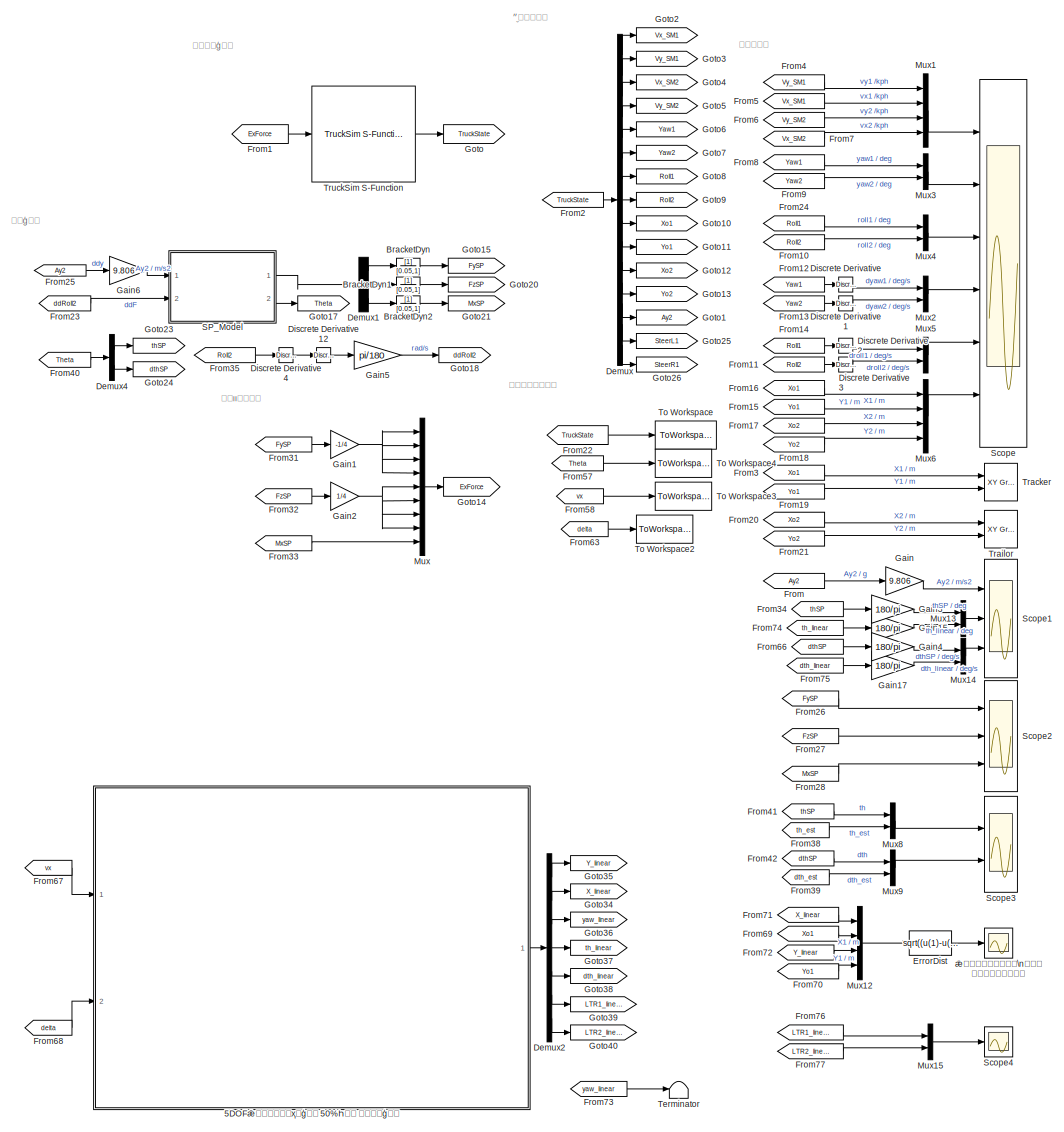
[diagram: root canvas - part 1/2, right side, full height]
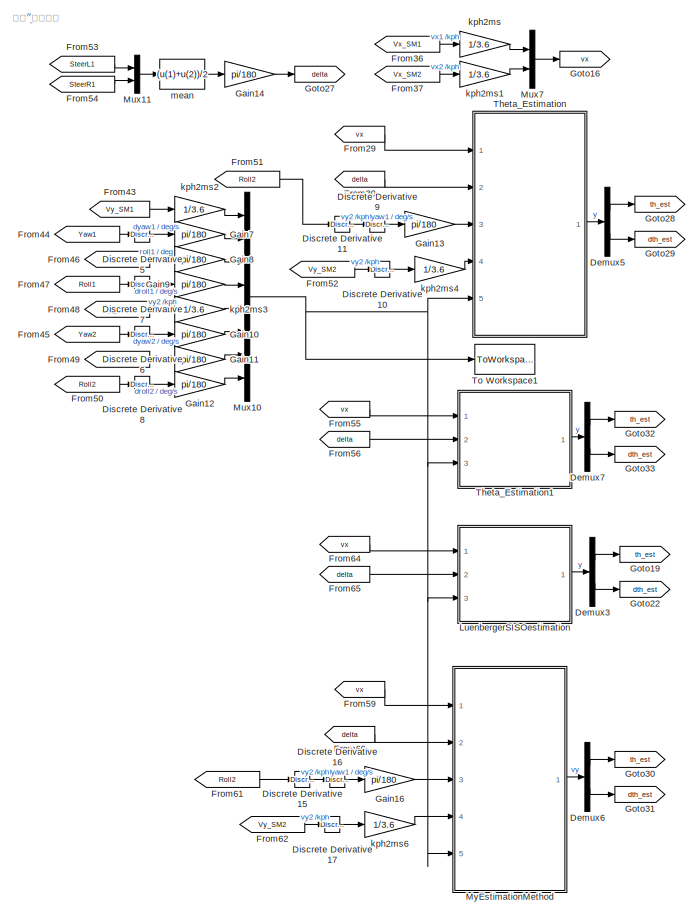
[diagram: root canvas - part 2/2, left side, full height]
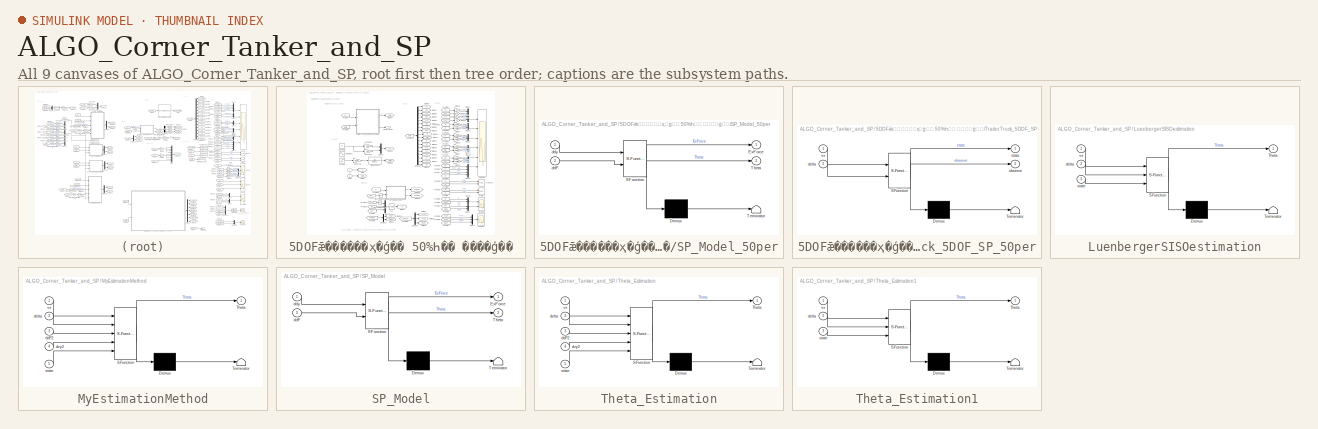
[diagram: thumbnail index - all 9 canvases of the model, root first then tree order]
MODEL ALGO_Corner_Tanker_and_SP
KIND model
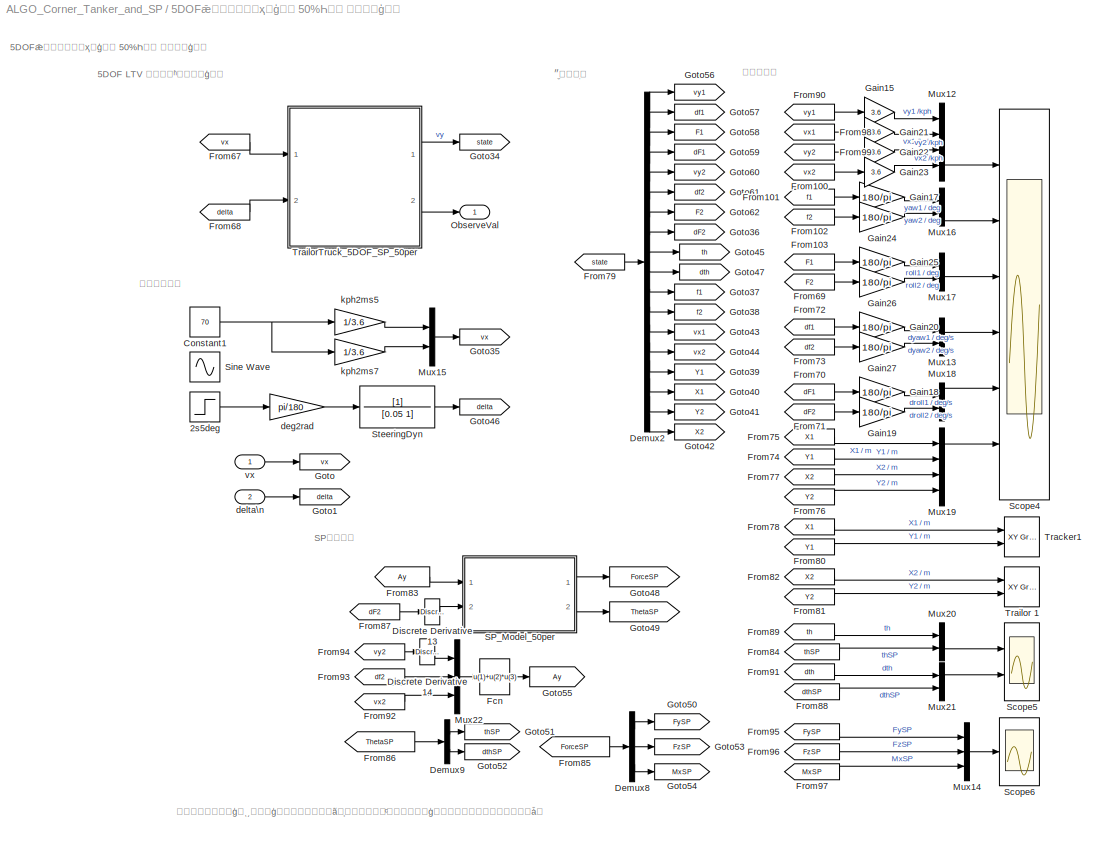
BLOCK [SubSystem] 5DOFǣ������ҳ�ģ�� 50%Һ�� ����ģ��
  Ports = [2, 1]
  RequestExecContextInheritance = off
  SID = 386
BLOCK [Step] 5DOFǣ������ҳ�ģ�� 50%Һ�� ����ģ��/2s5deg
  After = 5
  Commented = on
  SID = 270
  SampleTime = 0
  Time = 2
BLOCK [Constant] 5DOFǣ������ҳ�ģ�� 50%Һ�� ����ģ��/Constant1
  Commented = on
  SID = 271
  Value = 70
BLOCK [Demux] 5DOFǣ������ҳ�ģ�� 50%Һ�� ����ģ��/Demux2
  DisplayOption = bar
  Outputs = 18
  Ports = [1, 18]
  SID = 272
BLOCK [Demux] 5DOFǣ������ҳ�ģ�� 50%Һ�� ����ģ��/Demux8
  DisplayOption = bar
  Outputs = 3
  Ports = [1, 3]
  SID = 273
BLOCK [Demux] 5DOFǣ������ҳ�ģ�� 50%Һ�� ����ģ��/Demux9
  DisplayOption = bar
  Outputs = 2
  Ports = [1, 2]
  SID = 274
BLOCK [Reference] 5DOFǣ������ҳ�ģ�� 50%Һ�� ����ģ��/Discrete Derivative13  REF=simulink/Discrete/Discrete Derivative
  DoSatur = off
  ICPrevScaledInput = 0.0
  InputProcessing = Elements as channels (sample based)
  LockScale = off
  OutDataType = fixdt(1, 16)
  OutDataTypeStr = Inherit: Inherit via internal rule
  OutMax = []
  OutMin = []
  OutScaling = 2^-10
  OutputDataTypeScalingMode = Inherit via internal rule
  Ports = [1, 1]
  RndMeth = Floor
  SID = 275
  SourceBlock = simulink/Discrete/Discrete Derivative
  SourceProductBaseCode = SL
  SourceProductName = Simulink
  SourceType = Discrete Derivative
  gainval = 1.0
BLOCK [Reference] 5DOFǣ������ҳ�ģ�� 50%Һ�� ����ģ��/Discrete Derivative14  REF=simulink/Discrete/Discrete Derivative
  DoSatur = off
  ICPrevScaledInput = 0.0
  InputProcessing = Elements as channels (sample based)
  LockScale = off
  OutDataType = fixdt(1, 16)
  OutDataTypeStr = Inherit: Inherit via internal rule
  OutMax = []
  OutMin = []
  OutScaling = 2^-10
  OutputDataTypeScalingMode = Inherit via internal rule
  Ports = [1, 1]
  RndMeth = Floor
  SID = 276
  SourceBlock = simulink/Discrete/Discrete Derivative
  SourceProductBaseCode = SL
  SourceProductName = Simulink
  SourceType = Discrete Derivative
  gainval = 1.0
BLOCK [Fcn] 5DOFǣ������ҳ�ģ�� 50%Һ�� ����ģ��/Fcn
  Expr = u(1)+u(2)*u(3)
  SID = 277
BLOCK [From] 5DOFǣ������ҳ�ģ�� 50%Һ�� ����ģ��/From100
  GotoTag = vx2
  SID = 311
BLOCK [From] 5DOFǣ������ҳ�ģ�� 50%Һ�� ����ģ��/From101
  GotoTag = f1
  SID = 312
BLOCK [From] 5DOFǣ������ҳ�ģ�� 50%Һ�� ����ģ��/From102
  GotoTag = f2
  SID = 313
BLOCK [From] 5DOFǣ������ҳ�ģ�� 50%Һ�� ����ģ��/From103
  GotoTag = F1
  SID = 314
BLOCK [From] 5DOFǣ������ҳ�ģ�� 50%Һ�� ����ģ��/From67
  GotoTag = vx
  SID = 278
BLOCK [From] 5DOFǣ������ҳ�ģ�� 50%Һ�� ����ģ��/From68
  GotoTag = delta
  SID = 279
BLOCK [From] 5DOFǣ������ҳ�ģ�� 50%Һ�� ����ģ��/From69
  GotoTag = F2
  SID = 280
BLOCK [From] 5DOFǣ������ҳ�ģ�� 50%Һ�� ����ģ��/From70
  GotoTag = dF1
  SID = 281
BLOCK [From] 5DOFǣ������ҳ�ģ�� 50%Һ�� ����ģ��/From71
  GotoTag = dF2
  SID = 282
BLOCK [From] 5DOFǣ������ҳ�ģ�� 50%Һ�� ����ģ��/From72
  GotoTag = df1
  SID = 283
BLOCK [From] 5DOFǣ������ҳ�ģ�� 50%Һ�� ����ģ��/From73
  GotoTag = df2
  SID = 284
BLOCK [From] 5DOFǣ������ҳ�ģ�� 50%Һ�� ����ģ��/From74
  GotoTag = Y1
  SID = 285
BLOCK [From] 5DOFǣ������ҳ�ģ�� 50%Һ�� ����ģ��/From75
  GotoTag = X1
  SID = 286
BLOCK [From] 5DOFǣ������ҳ�ģ�� 50%Һ�� ����ģ��/From76
  GotoTag = Y2
  SID = 287
BLOCK [From] 5DOFǣ������ҳ�ģ�� 50%Һ�� ����ģ��/From77
  GotoTag = X2
  SID = 288
BLOCK [From] 5DOFǣ������ҳ�ģ�� 50%Һ�� ����ģ��/From78
  Commented = on
  GotoTag = X1
  SID = 289
BLOCK [From] 5DOFǣ������ҳ�ģ�� 50%Һ�� ����ģ��/From79
  GotoTag = state
  SID = 290
BLOCK [From] 5DOFǣ������ҳ�ģ�� 50%Һ�� ����ģ��/From80
  Commented = on
  GotoTag = Y1
  SID = 291
BLOCK [From] 5DOFǣ������ҳ�ģ�� 50%Һ�� ����ģ��/From81
  Commented = on
  GotoTag = Y2
  SID = 292
BLOCK [From] 5DOFǣ������ҳ�ģ�� 50%Һ�� ����ģ��/From82
  Commented = on
  GotoTag = X2
  SID = 293
BLOCK [From] 5DOFǣ������ҳ�ģ�� 50%Һ�� ����ģ��/From83
  GotoTag = Ay
  SID = 294
BLOCK [From] 5DOFǣ������ҳ�ģ�� 50%Һ�� ����ģ��/From84
  GotoTag = thSP
  SID = 295
BLOCK [From] 5DOFǣ������ҳ�ģ�� 50%Һ�� ����ģ��/From85
  GotoTag = ForceSP
  SID = 296
BLOCK [From] 5DOFǣ������ҳ�ģ�� 50%Һ�� ����ģ��/From86
  GotoTag = ThetaSP
  SID = 297
BLOCK [From] 5DOFǣ������ҳ�ģ�� 50%Һ�� ����ģ��/From87
  GotoTag = dF2
  SID = 298
BLOCK [From] 5DOFǣ������ҳ�ģ�� 50%Һ�� ����ģ��/From88
  GotoTag = dthSP
  SID = 299
BLOCK [From] 5DOFǣ������ҳ�ģ�� 50%Һ�� ����ģ��/From89
  GotoTag = th
  SID = 300
BLOCK [From] 5DOFǣ������ҳ�ģ�� 50%Һ�� ����ģ��/From90
  GotoTag = vy1
  SID = 301
BLOCK [From] 5DOFǣ������ҳ�ģ�� 50%Һ�� ����ģ��/From91
  GotoTag = dth
  SID = 302
BLOCK [From] 5DOFǣ������ҳ�ģ�� 50%Һ�� ����ģ��/From92
  GotoTag = vx2
  SID = 303
BLOCK [From] 5DOFǣ������ҳ�ģ�� 50%Һ�� ����ģ��/From93
  GotoTag = df2
  SID = 304
BLOCK [From] 5DOFǣ������ҳ�ģ�� 50%Һ�� ����ģ��/From94
  GotoTag = vy2
  SID = 305
BLOCK [From] 5DOFǣ������ҳ�ģ�� 50%Һ�� ����ģ��/From95
  GotoTag = FySP
  SID = 306
BLOCK [From] 5DOFǣ������ҳ�ģ�� 50%Һ�� ����ģ��/From96
  GotoTag = FzSP
  SID = 307
BLOCK [From] 5DOFǣ������ҳ�ģ�� 50%Һ�� ����ģ��/From97
  GotoTag = MxSP
  SID = 308
BLOCK [From] 5DOFǣ������ҳ�ģ�� 50%Һ�� ����ģ��/From98
  GotoTag = vx1
  SID = 309
BLOCK [From] 5DOFǣ������ҳ�ģ�� 50%Һ�� ����ģ��/From99
  GotoTag = vy2
  SID = 310
BLOCK [Gain] 5DOFǣ������ҳ�ģ�� 50%Һ�� ����ģ��/Gain15
  Gain = 3.6
  OutDataTypeStr = Inherit: Inherit via internal rule
  ParamDataTypeStr = Inherit: Inherit via internal rule
  SID = 315
  SaturateOnIntegerOverflow = off
BLOCK [Gain] 5DOFǣ������ҳ�ģ�� 50%Һ�� ����ģ��/Gain17
  Gain = 180/pi
  OutDataTypeStr = Inherit: Inherit via internal rule
  ParamDataTypeStr = Inherit: Inherit via internal rule
  SID = 316
  SaturateOnIntegerOverflow = off
BLOCK [Gain] 5DOFǣ������ҳ�ģ�� 50%Һ�� ����ģ��/Gain18
  Gain = 180/pi
  OutDataTypeStr = Inherit: Inherit via internal rule
  ParamDataTypeStr = Inherit: Inherit via internal rule
  SID = 317
  SaturateOnIntegerOverflow = off
BLOCK [Gain] 5DOFǣ������ҳ�ģ�� 50%Һ�� ����ģ��/Gain19
  Gain = 180/pi
  OutDataTypeStr = Inherit: Inherit via internal rule
  ParamDataTypeStr = Inherit: Inherit via internal rule
  SID = 318
  SaturateOnIntegerOverflow = off
BLOCK [Gain] 5DOFǣ������ҳ�ģ�� 50%Һ�� ����ģ��/Gain20
  Gain = 180/pi
  OutDataTypeStr = Inherit: Inherit via internal rule
  ParamDataTypeStr = Inherit: Inherit via internal rule
  SID = 319
  SaturateOnIntegerOverflow = off
BLOCK [Gain] 5DOFǣ������ҳ�ģ�� 50%Һ�� ����ģ��/Gain21
  Gain = 3.6
  OutDataTypeStr = Inherit: Inherit via internal rule
  ParamDataTypeStr = Inherit: Inherit via internal rule
  SID = 320
  SaturateOnIntegerOverflow = off
BLOCK [Gain] 5DOFǣ������ҳ�ģ�� 50%Һ�� ����ģ��/Gain22
  Gain = 3.6
  OutDataTypeStr = Inherit: Inherit via internal rule
  ParamDataTypeStr = Inherit: Inherit via internal rule
  SID = 321
  SaturateOnIntegerOverflow = off
BLOCK [Gain] 5DOFǣ������ҳ�ģ�� 50%Һ�� ����ģ��/Gain23
  Gain = 3.6
  OutDataTypeStr = Inherit: Inherit via internal rule
  ParamDataTypeStr = Inherit: Inherit via internal rule
  SID = 322
  SaturateOnIntegerOverflow = off
BLOCK [Gain] 5DOFǣ������ҳ�ģ�� 50%Һ�� ����ģ��/Gain24
  Gain = 180/pi
  OutDataTypeStr = Inherit: Inherit via internal rule
  ParamDataTypeStr = Inherit: Inherit via internal rule
  SID = 323
  SaturateOnIntegerOverflow = off
BLOCK [Gain] 5DOFǣ������ҳ�ģ�� 50%Һ�� ����ģ��/Gain25
  Gain = 180/pi
  OutDataTypeStr = Inherit: Inherit via internal rule
  ParamDataTypeStr = Inherit: Inherit via internal rule
  SID = 324
  SaturateOnIntegerOverflow = off
BLOCK [Gain] 5DOFǣ������ҳ�ģ�� 50%Һ�� ����ģ��/Gain26
  Gain = 180/pi
  OutDataTypeStr = Inherit: Inherit via internal rule
  ParamDataTypeStr = Inherit: Inherit via internal rule
  SID = 325
  SaturateOnIntegerOverflow = off
BLOCK [Gain] 5DOFǣ������ҳ�ģ�� 50%Һ�� ����ģ��/Gain27
  Gain = 180/pi
  OutDataTypeStr = Inherit: Inherit via internal rule
  ParamDataTypeStr = Inherit: Inherit via internal rule
  SID = 326
  SaturateOnIntegerOverflow = off
BLOCK [Goto] 5DOFǣ������ҳ�ģ�� 50%Һ�� ����ģ��/Goto
  GotoTag = vx
  SID = 390
BLOCK [Goto] 5DOFǣ������ҳ�ģ�� 50%Һ�� ����ģ��/Goto1
  GotoTag = delta
  SID = 391
BLOCK [Goto] 5DOFǣ������ҳ�ģ�� 50%Һ�� ����ģ��/Goto34
  GotoTag = state
  SID = 327
BLOCK [Goto] 5DOFǣ������ҳ�ģ�� 50%Һ�� ����ģ��/Goto35
  Commented = on
  GotoTag = vx
  SID = 328
BLOCK [Goto] 5DOFǣ������ҳ�ģ�� 50%Һ�� ����ģ��/Goto36
  GotoTag = dF2
  SID = 329
BLOCK [Goto] 5DOFǣ������ҳ�ģ�� 50%Һ�� ����ģ��/Goto37
  GotoTag = f1
  SID = 330
BLOCK [Goto] 5DOFǣ������ҳ�ģ�� 50%Һ�� ����ģ��/Goto38
  GotoTag = f2
  SID = 331
BLOCK [Goto] 5DOFǣ������ҳ�ģ�� 50%Һ�� ����ģ��/Goto39
  GotoTag = Y1
  SID = 332
BLOCK [Goto] 5DOFǣ������ҳ�ģ�� 50%Һ�� ����ģ��/Goto40
  GotoTag = X1
  SID = 333
BLOCK [Goto] 5DOFǣ������ҳ�ģ�� 50%Һ�� ����ģ��/Goto41
  GotoTag = Y2
  SID = 334
BLOCK [Goto] 5DOFǣ������ҳ�ģ�� 50%Һ�� ����ģ��/Goto42
  GotoTag = X2
  SID = 335
BLOCK [Goto] 5DOFǣ������ҳ�ģ�� 50%Һ�� ����ģ��/Goto43
  GotoTag = vx1
  SID = 336
BLOCK [Goto] 5DOFǣ������ҳ�ģ�� 50%Һ�� ����ģ��/Goto44
  GotoTag = vx2
  SID = 337
BLOCK [Goto] 5DOFǣ������ҳ�ģ�� 50%Һ�� ����ģ��/Goto45
  GotoTag = th
  SID = 338
BLOCK [Goto] 5DOFǣ������ҳ�ģ�� 50%Һ�� ����ģ��/Goto46
  Commented = on
  GotoTag = delta
  SID = 339
BLOCK [Goto] 5DOFǣ������ҳ�ģ�� 50%Һ�� ����ģ��/Goto47
  GotoTag = dth
  SID = 340
BLOCK [Goto] 5DOFǣ������ҳ�ģ�� 50%Һ�� ����ģ��/Goto48
  GotoTag = ForceSP
  SID = 341
BLOCK [Goto] 5DOFǣ������ҳ�ģ�� 50%Һ�� ����ģ��/Goto49
  GotoTag = ThetaSP
  SID = 342
BLOCK [Goto] 5DOFǣ������ҳ�ģ�� 50%Һ�� ����ģ��/Goto50
  GotoTag = FySP
  SID = 343
BLOCK [Goto] 5DOFǣ������ҳ�ģ�� 50%Һ�� ����ģ��/Goto51
  GotoTag = thSP
  SID = 344
BLOCK [Goto] 5DOFǣ������ҳ�ģ�� 50%Һ�� ����ģ��/Goto52
  GotoTag = dthSP
  SID = 345
BLOCK [Goto] 5DOFǣ������ҳ�ģ�� 50%Һ�� ����ģ��/Goto53
  GotoTag = FzSP
  SID = 346
BLOCK [Goto] 5DOFǣ������ҳ�ģ�� 50%Һ�� ����ģ��/Goto54
  GotoTag = MxSP
  SID = 347
BLOCK [Goto] 5DOFǣ������ҳ�ģ�� 50%Һ�� ����ģ��/Goto55
  GotoTag = Ay
  SID = 348
BLOCK [Goto] 5DOFǣ������ҳ�ģ�� 50%Һ�� ����ģ��/Goto56
  GotoTag = vy1
  SID = 349
BLOCK [Goto] 5DOFǣ������ҳ�ģ�� 50%Һ�� ����ģ��/Goto57
  GotoTag = df1
  SID = 350
BLOCK [Goto] 5DOFǣ������ҳ�ģ�� 50%Һ�� ����ģ��/Goto58
  GotoTag = F1
  SID = 351
BLOCK [Goto] 5DOFǣ������ҳ�ģ�� 50%Һ�� ����ģ��/Goto59
  GotoTag = dF1
  SID = 352
BLOCK [Goto] 5DOFǣ������ҳ�ģ�� 50%Һ�� ����ģ��/Goto60
  GotoTag = vy2
  SID = 353
BLOCK [Goto] 5DOFǣ������ҳ�ģ�� 50%Һ�� ����ģ��/Goto61
  GotoTag = df2
  SID = 354
BLOCK [Goto] 5DOFǣ������ҳ�ģ�� 50%Һ�� ����ģ��/Goto62
  GotoTag = F2
  SID = 355
BLOCK [Mux] 5DOFǣ������ҳ�ģ�� 50%Һ�� ����ģ��/Mux12
  DisplayOption = bar
  Ports = [4, 1]
  SID = 356
BLOCK [Mux] 5DOFǣ������ҳ�ģ�� 50%Һ�� ����ģ��/Mux13
  DisplayOption = bar
  Inputs = 2
  Ports = [2, 1]
  SID = 357
BLOCK [Mux] 5DOFǣ������ҳ�ģ�� 50%Һ�� ����ģ��/Mux14
  DisplayOption = bar
  Inputs = 3
  Ports = [3, 1]
  SID = 358
BLOCK [Mux] 5DOFǣ������ҳ�ģ�� 50%Һ�� ����ģ��/Mux15
  Commented = on
  DisplayOption = bar
  Inputs = 2
  Ports = [2, 1]
  SID = 359
BLOCK [Mux] 5DOFǣ������ҳ�ģ�� 50%Һ�� ����ģ��/Mux16
  DisplayOption = bar
  Inputs = 2
  Ports = [2, 1]
  SID = 360
BLOCK [Mux] 5DOFǣ������ҳ�ģ�� 50%Һ�� ����ģ��/Mux17
  DisplayOption = bar
  Inputs = 2
  Ports = [2, 1]
  SID = 361
BLOCK [Mux] 5DOFǣ������ҳ�ģ�� 50%Һ�� ����ģ��/Mux18
  DisplayOption = bar
  Inputs = 2
  Ports = [2, 1]
  SID = 362
BLOCK [Mux] 5DOFǣ������ҳ�ģ�� 50%Һ�� ����ģ��/Mux19
  DisplayOption = bar
  Ports = [4, 1]
  SID = 363
BLOCK [Mux] 5DOFǣ������ҳ�ģ�� 50%Һ�� ����ģ��/Mux20
  DisplayOption = bar
  Inputs = 2
  Ports = [2, 1]
  SID = 364
BLOCK [Mux] 5DOFǣ������ҳ�ģ�� 50%Һ�� ����ģ��/Mux21
  DisplayOption = bar
  Inputs = 2
  Ports = [2, 1]
  SID = 365
BLOCK [Mux] 5DOFǣ������ҳ�ģ�� 50%Һ�� ����ģ��/Mux22
  DisplayOption = bar
  Inputs = 3
  Ports = [3, 1]
  SID = 366
BLOCK [Outport] 5DOFǣ������ҳ�ģ�� 50%Һ�� ����ģ��/ObserveVal
  IconDisplay = Port number
  SID = 397
BLOCK [SubSystem] 5DOFǣ������ҳ�ģ�� 50%Һ�� ����ģ��/SP_Model_50per
  ErrorFcn = Stateflow.Translate.translate
  PermitHierarchicalResolution = ExplicitOnly
  Ports = [2, 2]
  RequestExecContextInheritance = off
  SFBlockType = MATLAB Function
  SID = 367
  SystemSampleTime = 0.005
  TreatAsAtomicUnit = on
BLOCK [Demux] 5DOFǣ������ҳ�ģ�� 50%Һ�� ����ģ��/SP_Model_50per/ Demux 
  Outputs = 1
  Ports = [1, 1]
  SID = 367::20
BLOCK [S-Function] 5DOFǣ������ҳ�ģ�� 50%Һ�� ����ģ��/SP_Model_50per/ SFunction 
  EnableBusSupport = on
  FunctionName = sf_sfun
  PortCounts = [2 3]
  Ports = [2, 3]
  SFcnIsStateOwnerBlock = off
  SFunctionDeploymentMode = off
  SID = 367::19
  Tag = Stateflow S-Function ALGO_Corner_Tanker_and_SP 6
BLOCK [Terminator] 5DOFǣ������ҳ�ģ�� 50%Һ�� ����ģ��/SP_Model_50per/ Terminator 
  SID = 367::21
BLOCK [Outport] 5DOFǣ������ҳ�ģ�� 50%Һ�� ����ģ��/SP_Model_50per/ExForce
  IconDisplay = Port number
  SID = 367::5
BLOCK [Outport] 5DOFǣ������ҳ�ģ�� 50%Һ�� ����ģ��/SP_Model_50per/Theta
  IconDisplay = Port number
  Port = 2
  SID = 367::23
BLOCK [Inport] 5DOFǣ������ҳ�ģ�� 50%Һ�� ����ģ��/SP_Model_50per/ddF
  IconDisplay = Port number
  Port = 2
  SID = 367::22
BLOCK [Inport] 5DOFǣ������ҳ�ģ�� 50%Һ�� ����ģ��/SP_Model_50per/ddy
  IconDisplay = Port number
  SID = 367::1
BLOCK [Scope] 5DOFǣ������ҳ�ģ�� 50%Һ�� ����ģ��/Scope4
  Floating = off
  NumInputPorts = 6
  Ports = [6]
  SID = 368
  ScopeSpecificationString = Simulink.scopes.TimeScopeBlockCfg('CurrentConfiguration', extmgr.ConfigurationSet(extmgr.Configuration('Core','General UI',true),extmgr.Configuration('Core','Source UI',true),extmgr.Configuration('Sources','WiredSimulink',true,'DataLoggingVariableName','ScopeData3'),extmgr.Configuration('Visuals','Time Domain',true,'SerializedDisplays',{struct('MinYLimReal','-5.18493','MaxYLimReal','45.02055','YLa...<+5041ch>
BLOCK [Scope] 5DOFǣ������ҳ�ģ�� 50%Һ�� ����ģ��/Scope5
  Floating = off
  NumInputPorts = 2
  Ports = [2]
  SID = 369
  ScopeSpecificationString = Simulink.scopes.TimeScopeBlockCfg('CurrentConfiguration', extmgr.ConfigurationSet(extmgr.Configuration('Core','General UI',true),extmgr.Configuration('Core','Source UI',true),extmgr.Configuration('Sources','WiredSimulink',true,'DataLoggingVariableName','ScopeData1'),extmgr.Configuration('Visuals','Time Domain',true,'SerializedDisplays',{struct('MinYLimReal','-0.79058','MaxYLimReal','0.87175','YLab...<+2033ch>
BLOCK [Scope] 5DOFǣ������ҳ�ģ�� 50%Һ�� ����ģ��/Scope6
  Floating = off
  NumInputPorts = 1
  Ports = [1]
  SID = 370
  ScopeSpecificationString = Simulink.scopes.TimeScopeBlockCfg('CurrentConfiguration', extmgr.ConfigurationSet(extmgr.Configuration('Core','General UI',true),extmgr.Configuration('Core','Source UI',true),extmgr.Configuration('Sources','WiredSimulink',true,'DataLoggingVariableName','ScopeData2'),extmgr.Configuration('Visuals','Time Domain',true),extmgr.Configuration('Tools','Plot Navigation',true),extmgr.Configuration('Tools',...<+40ch>
BLOCK [Sin] 5DOFǣ������ҳ�ģ�� 50%Һ�� ����ģ��/Sine Wave
  Amplitude = 25
  Commented = on
  Frequency = 2*pi*0.2
  Ports = [0, 1]
  SID = 371
  SampleTime = 0
BLOCK [TransferFcn] 5DOFǣ������ҳ�ģ�� 50%Һ�� ����ģ��/SteeringDyn
  Commented = on
  Denominator = [0.05 1]
  SID = 372
BLOCK [Reference] 5DOFǣ������ҳ�ģ�� 50%Һ�� ����ģ��/Tracker1  REF=simulink/Sinks/XY Graph
  Commented = on
  Ports = [2]
  SID = 373
  SourceBlock = simulink/Sinks/XY Graph
  SourceProductBaseCode = SL
  SourceProductName = Simulink
  SourceType = XY scope.
  st = -1
  xmax = 200
  xmin = -15
  ymax = 200
  ymin = -15
BLOCK [Reference] 5DOFǣ������ҳ�ģ�� 50%Һ�� ����ģ��/Trailor 1  REF=simulink/Sinks/XY Graph
  Commented = on
  Ports = [2]
  SID = 374
  SourceBlock = simulink/Sinks/XY Graph
  SourceProductBaseCode = SL
  SourceProductName = Simulink
  SourceType = XY scope.
  st = -1
  xmax = 100
  xmin = -100
  ymax = 100
  ymin = -100
BLOCK [SubSystem] 5DOFǣ������ҳ�ģ�� 50%Һ�� ����ģ��/TrailorTruck_5DOF_SP_50per
  ErrorFcn = Stateflow.Translate.translate
  PermitHierarchicalResolution = ExplicitOnly
  Ports = [2, 2]
  RequestExecContextInheritance = off
  SFBlockType = MATLAB Function
  SID = 375
  SystemSampleTime = 0.01
  TreatAsAtomicUnit = on
BLOCK [Demux] 5DOFǣ������ҳ�ģ�� 50%Һ�� ����ģ��/TrailorTruck_5DOF_SP_50per/ Demux 
  Outputs = 1
  Ports = [1, 1]
  SID = 375::20
BLOCK [S-Function] 5DOFǣ������ҳ�ģ�� 50%Һ�� ����ģ��/TrailorTruck_5DOF_SP_50per/ SFunction 
  EnableBusSupport = on
  FunctionName = sf_sfun
  PortCounts = [2 3]
  Ports = [2, 3]
  SFcnIsStateOwnerBlock = off
  SFunctionDeploymentMode = off
  SID = 375::19
  Tag = Stateflow S-Function ALGO_Corner_Tanker_and_SP 7
BLOCK [Terminator] 5DOFǣ������ҳ�ģ�� 50%Һ�� ����ģ��/TrailorTruck_5DOF_SP_50per/ Terminator 
  SID = 375::21
BLOCK [Inport] 5DOFǣ������ҳ�ģ�� 50%Һ�� ����ģ��/TrailorTruck_5DOF_SP_50per/delta
  IconDisplay = Port number
  Port = 2
  SID = 375::22
BLOCK [Outport] 5DOFǣ������ҳ�ģ�� 50%Һ�� ����ģ��/TrailorTruck_5DOF_SP_50per/observe
  IconDisplay = Port number
  Port = 2
  SID = 375::28
BLOCK [Outport] 5DOFǣ������ҳ�ģ�� 50%Һ�� ����ģ��/TrailorTruck_5DOF_SP_50per/state
  IconDisplay = Port number
  SID = 375::5
BLOCK [Inport] 5DOFǣ������ҳ�ģ�� 50%Һ�� ����ģ��/TrailorTruck_5DOF_SP_50per/vx
  IconDisplay = Port number
  SID = 375::1
BLOCK [Gain] 5DOFǣ������ҳ�ģ�� 50%Һ�� ����ģ��/deg2rad
  Commented = on
  Gain = pi/180
  OutDataTypeStr = Inherit: Inherit via internal rule
  ParamDataTypeStr = Inherit: Inherit via internal rule
  SID = 376
  SaturateOnIntegerOverflow = off
BLOCK [Inport] 5DOFǣ������ҳ�ģ�� 50%Һ�� ����ģ��/delta\n
  IconDisplay = Port number
  Port = 2
  SID = 389
BLOCK [Gain] 5DOFǣ������ҳ�ģ�� 50%Һ�� ����ģ��/kph2ms5
  Commented = on
  Gain = 1/3.6
  OutDataTypeStr = Inherit: Inherit via internal rule
  ParamDataTypeStr = Inherit: Inherit via internal rule
  SID = 377
  SaturateOnIntegerOverflow = off
BLOCK [Gain] 5DOFǣ������ҳ�ģ�� 50%Һ�� ����ģ��/kph2ms7
  Commented = on
  Gain = 1/3.6
  OutDataTypeStr = Inherit: Inherit via internal rule
  ParamDataTypeStr = Inherit: Inherit via internal rule
  SID = 378
  SaturateOnIntegerOverflow = off
BLOCK [Inport] 5DOFǣ������ҳ�ģ�� 50%Һ�� ����ģ��/vx
  IconDisplay = Port number
  SID = 388
BLOCK [TransferFcn] BracketDyn
  Denominator = [0.05 1]
  SID = 75
BLOCK [TransferFcn] BracketDyn1
  Denominator = [0.05 1]
  SID = 76
BLOCK [TransferFcn] BracketDyn2
  Denominator = [0.05 1]
  SID = 77
BLOCK [Demux] Demux
  DisplayOption = bar
  Outputs = 15
  Ports = [1, 15]
  SID = 14
BLOCK [Demux] Demux1
  DisplayOption = bar
  Outputs = 3
  Ports = [1, 3]
  SID = 78
BLOCK [Demux] Demux2
  DisplayOption = bar
  Outputs = 7
  Ports = [1, 7]
  SID = 409
BLOCK [Demux] Demux3
  Commented = on
  DisplayOption = bar
  Outputs = 2
  Ports = [1, 2]
  SID = 226
BLOCK [Demux] Demux4
  DisplayOption = bar
  Outputs = 2
  Ports = [1, 2]
  SID = 159
BLOCK [Demux] Demux5
  Commented = on
  DisplayOption = bar
  Outputs = 2
  Ports = [1, 2]
  SID = 255
BLOCK [Demux] Demux6
  Commented = on
  DisplayOption = bar
  Outputs = 2
  Ports = [1, 2]
  SID = 258
BLOCK [Demux] Demux7
  Commented = on
  DisplayOption = bar
  Outputs = 2
  Ports = [1, 2]
  SID = 261
BLOCK [Reference] Discrete Derivative  REF=simulink/Discrete/Discrete Derivative
  DoSatur = off
  ICPrevScaledInput = 0.0
  InputProcessing = Elements as channels (sample based)
  LockScale = off
  OutDataType = fixdt(1, 16)
  OutDataTypeStr = Inherit: Inherit via internal rule
  OutMax = []
  OutMin = []
  OutScaling = 2^-10
  OutputDataTypeScalingMode = Inherit via internal rule
  Ports = [1, 1]
  RndMeth = Floor
  SID = 15
  SourceBlock = simulink/Discrete/Discrete Derivative
  SourceProductBaseCode = SL
  SourceProductName = Simulink
  SourceType = Discrete Derivative
  gainval = 1.0
BLOCK [Reference] Discrete Derivative1  REF=simulink/Discrete/Discrete Derivative
  DoSatur = off
  ICPrevScaledInput = 0.0
  InputProcessing = Elements as channels (sample based)
  LockScale = off
  OutDataType = fixdt(1, 16)
  OutDataTypeStr = Inherit: Inherit via internal rule
  OutMax = []
  OutMin = []
  OutScaling = 2^-10
  OutputDataTypeScalingMode = Inherit via internal rule
  Ports = [1, 1]
  RndMeth = Floor
  SID = 16
  SourceBlock = simulink/Discrete/Discrete Derivative
  SourceProductBaseCode = SL
  SourceProductName = Simulink
  SourceType = Discrete Derivative
  gainval = 1.0
BLOCK [Reference] Discrete Derivative10  REF=simulink/Discrete/Discrete Derivative
  Commented = on
  DoSatur = off
  ICPrevScaledInput = 0.0
  InputProcessing = Elements as channels (sample based)
  LockScale = off
  OutDataType = fixdt(1, 16)
  OutDataTypeStr = Inherit: Inherit via internal rule
  OutMax = []
  OutMin = []
  OutScaling = 2^-10
  OutputDataTypeScalingMode = Inherit via internal rule
  Ports = [1, 1]
  RndMeth = Floor
  SID = 194
  SourceBlock = simulink/Discrete/Discrete Derivative
  SourceProductBaseCode = SL
  SourceProductName = Simulink
  SourceType = Discrete Derivative
  gainval = 1.0
BLOCK [Reference] Discrete Derivative11  REF=simulink/Discrete/Discrete Derivative
  Commented = on
  DoSatur = off
  ICPrevScaledInput = 0.0
  InputProcessing = Elements as channels (sample based)
  LockScale = off
  OutDataType = fixdt(1, 16)
  OutDataTypeStr = Inherit: Inherit via internal rule
  OutMax = []
  OutMin = []
  OutScaling = 2^-10
  OutputDataTypeScalingMode = Inherit via internal rule
  Ports = [1, 1]
  RndMeth = Floor
  SID = 196
  SourceBlock = simulink/Discrete/Discrete Derivative
  SourceProductBaseCode = SL
  SourceProductName = Simulink
  SourceType = Discrete Derivative
  gainval = 1.0
BLOCK [Reference] Discrete Derivative12  REF=simulink/Discrete/Discrete Derivative
  DoSatur = off
  ICPrevScaledInput = 0.0
  InputProcessing = Elements as channels (sample based)
  LockScale = off
  OutDataType = fixdt(1, 16)
  OutDataTypeStr = Inherit: Inherit via internal rule
  OutMax = []
  OutMin = []
  OutScaling = 2^-10
  OutputDataTypeScalingMode = Inherit via internal rule
  Ports = [1, 1]
  RndMeth = Floor
  SID = 264
  SourceBlock = simulink/Discrete/Discrete Derivative
  SourceProductBaseCode = SL
  SourceProductName = Simulink
  SourceType = Discrete Derivative
  gainval = 1.0
BLOCK [Reference] Discrete Derivative15  REF=simulink/Discrete/Discrete Derivative
  Commented = on
  DoSatur = off
  ICPrevScaledInput = 0.0
  InputProcessing = Elements as channels (sample based)
  LockScale = off
  OutDataType = fixdt(1, 16)
  OutDataTypeStr = Inherit: Inherit via internal rule
  OutMax = []
  OutMin = []
  OutScaling = 2^-10
  OutputDataTypeScalingMode = Inherit via internal rule
  Ports = [1, 1]
  RndMeth = Floor
  SID = 227
  SourceBlock = simulink/Discrete/Discrete Derivative
  SourceProductBaseCode = SL
  SourceProductName = Simulink
  SourceType = Discrete Derivative
  gainval = 1.0
BLOCK [Reference] Discrete Derivative16  REF=simulink/Discrete/Discrete Derivative
  Commented = on
  DoSatur = off
  ICPrevScaledInput = 0.0
  InputProcessing = Elements as channels (sample based)
  LockScale = off
  OutDataType = fixdt(1, 16)
  OutDataTypeStr = Inherit: Inherit via internal rule
  OutMax = []
  OutMin = []
  OutScaling = 2^-10
  OutputDataTypeScalingMode = Inherit via internal rule
  Ports = [1, 1]
  RndMeth = Floor
  SID = 228
  SourceBlock = simulink/Discrete/Discrete Derivative
  SourceProductBaseCode = SL
  SourceProductName = Simulink
  SourceType = Discrete Derivative
  gainval = 1.0
BLOCK [Reference] Discrete Derivative17  REF=simulink/Discrete/Discrete Derivative
  Commented = on
  DoSatur = off
  ICPrevScaledInput = 0.0
  InputProcessing = Elements as channels (sample based)
  LockScale = off
  OutDataType = fixdt(1, 16)
  OutDataTypeStr = Inherit: Inherit via internal rule
  OutMax = []
  OutMin = []
  OutScaling = 2^-10
  OutputDataTypeScalingMode = Inherit via internal rule
  Ports = [1, 1]
  RndMeth = Floor
  SID = 229
  SourceBlock = simulink/Discrete/Discrete Derivative
  SourceProductBaseCode = SL
  SourceProductName = Simulink
  SourceType = Discrete Derivative
  gainval = 1.0
BLOCK [Reference] Discrete Derivative2  REF=simulink/Discrete/Discrete Derivative
  DoSatur = off
  ICPrevScaledInput = 0.0
  InputProcessing = Elements as channels (sample based)
  LockScale = off
  OutDataType = fixdt(1, 16)
  OutDataTypeStr = Inherit: Inherit via internal rule
  OutMax = []
  OutMin = []
  OutScaling = 2^-10
  OutputDataTypeScalingMode = Inherit via internal rule
  Ports = [1, 1]
  RndMeth = Floor
  SID = 17
  SourceBlock = simulink/Discrete/Discrete Derivative
  SourceProductBaseCode = SL
  SourceProductName = Simulink
  SourceType = Discrete Derivative
  gainval = 1.0
BLOCK [Reference] Discrete Derivative3  REF=simulink/Discrete/Discrete Derivative
  DoSatur = off
  ICPrevScaledInput = 0.0
  InputProcessing = Elements as channels (sample based)
  LockScale = off
  OutDataType = fixdt(1, 16)
  OutDataTypeStr = Inherit: Inherit via internal rule
  OutMax = []
  OutMin = []
  OutScaling = 2^-10
  OutputDataTypeScalingMode = Inherit via internal rule
  Ports = [1, 1]
  RndMeth = Floor
  SID = 18
  SourceBlock = simulink/Discrete/Discrete Derivative
  SourceProductBaseCode = SL
  SourceProductName = Simulink
  SourceType = Discrete Derivative
  gainval = 1.0
BLOCK [Reference] Discrete Derivative4  REF=simulink/Discrete/Discrete Derivative
  DoSatur = off
  ICPrevScaledInput = 0.0
  InputProcessing = Elements as channels (sample based)
  LockScale = off
  OutDataType = fixdt(1, 16)
  OutDataTypeStr = Inherit: Inherit via internal rule
  OutMax = []
  OutMin = []
  OutScaling = 2^-10
  OutputDataTypeScalingMode = Inherit via internal rule
  Ports = [1, 1]
  RndMeth = Floor
  SID = 114
  SourceBlock = simulink/Discrete/Discrete Derivative
  SourceProductBaseCode = SL
  SourceProductName = Simulink
  SourceType = Discrete Derivative
  gainval = 1.0
BLOCK [Reference] Discrete Derivative5  REF=simulink/Discrete/Discrete Derivative
  Commented = on
  DoSatur = off
  ICPrevScaledInput = 0.0
  InputProcessing = Elements as channels (sample based)
  LockScale = off
  OutDataType = fixdt(1, 16)
  OutDataTypeStr = Inherit: Inherit via internal rule
  OutMax = []
  OutMin = []
  OutScaling = 2^-10
  OutputDataTypeScalingMode = Inherit via internal rule
  Ports = [1, 1]
  RndMeth = Floor
  SID = 170
  SourceBlock = simulink/Discrete/Discrete Derivative
  SourceProductBaseCode = SL
  SourceProductName = Simulink
  SourceType = Discrete Derivative
  gainval = 1.0
BLOCK [Reference] Discrete Derivative6  REF=simulink/Discrete/Discrete Derivative
  Commented = on
  DoSatur = off
  ICPrevScaledInput = 0.0
  InputProcessing = Elements as channels (sample based)
  LockScale = off
  OutDataType = fixdt(1, 16)
  OutDataTypeStr = Inherit: Inherit via internal rule
  OutMax = []
  OutMin = []
  OutScaling = 2^-10
  OutputDataTypeScalingMode = Inherit via internal rule
  Ports = [1, 1]
  RndMeth = Floor
  SID = 172
  SourceBlock = simulink/Discrete/Discrete Derivative
  SourceProductBaseCode = SL
  SourceProductName = Simulink
  SourceType = Discrete Derivative
  gainval = 1.0
BLOCK [Reference] Discrete Derivative7  REF=simulink/Discrete/Discrete Derivative
  Commented = on
  DoSatur = off
  ICPrevScaledInput = 0.0
  InputProcessing = Elements as channels (sample based)
  LockScale = off
  OutDataType = fixdt(1, 16)
  OutDataTypeStr = Inherit: Inherit via internal rule
  OutMax = []
  OutMin = []
  OutScaling = 2^-10
  OutputDataTypeScalingMode = Inherit via internal rule
  Ports = [1, 1]
  RndMeth = Floor
  SID = 175
  SourceBlock = simulink/Discrete/Discrete Derivative
  SourceProductBaseCode = SL
  SourceProductName = Simulink
  SourceType = Discrete Derivative
  gainval = 1.0
BLOCK [Reference] Discrete Derivative8  REF=simulink/Discrete/Discrete Derivative
  Commented = on
  DoSatur = off
  ICPrevScaledInput = 0.0
  InputProcessing = Elements as channels (sample based)
  LockScale = off
  OutDataType = fixdt(1, 16)
  OutDataTypeStr = Inherit: Inherit via internal rule
  OutMax = []
  OutMin = []
  OutScaling = 2^-10
  OutputDataTypeScalingMode = Inherit via internal rule
  Ports = [1, 1]
  RndMeth = Floor
  SID = 179
  SourceBlock = simulink/Discrete/Discrete Derivative
  SourceProductBaseCode = SL
  SourceProductName = Simulink
  SourceType = Discrete Derivative
  gainval = 1.0
BLOCK [Reference] Discrete Derivative9  REF=simulink/Discrete/Discrete Derivative
  Commented = on
  DoSatur = off
  ICPrevScaledInput = 0.0
  InputProcessing = Elements as channels (sample based)
  LockScale = off
  OutDataType = fixdt(1, 16)
  OutDataTypeStr = Inherit: Inherit via internal rule
  OutMax = []
  OutMin = []
  OutScaling = 2^-10
  OutputDataTypeScalingMode = Inherit via internal rule
  Ports = [1, 1]
  RndMeth = Floor
  SID = 193
  SourceBlock = simulink/Discrete/Discrete Derivative
  SourceProductBaseCode = SL
  SourceProductName = Simulink
  SourceType = Discrete Derivative
  gainval = 1.0
BLOCK [Fcn] ErrorDist
  Expr = sqrt((u(1)-u(2))^2+(u(3)-u(4))^2)
  SID = 401
BLOCK [From] From
  GotoTag = Ay2
  SID = 69
BLOCK [From] From1
  GotoTag = ExForce
  SID = 9
BLOCK [From] From10
  GotoTag = Roll2
  SID = 20
BLOCK [From] From11
  GotoTag = Roll2
  SID = 21
BLOCK [From] From12
  GotoTag = Yaw1
  SID = 22
BLOCK [From] From13
  GotoTag = Yaw2
  SID = 23
BLOCK [From] From14
  GotoTag = Roll1
  SID = 24
BLOCK [From] From15
  GotoTag = Yo1
  SID = 25
BLOCK [From] From16
  GotoTag = Xo1
  SID = 26
BLOCK [From] From17
  GotoTag = Xo2
  SID = 27
BLOCK [From] From18
  GotoTag = Yo2
  SID = 28
BLOCK [From] From19
  GotoTag = Yo1
  SID = 29
BLOCK [From] From2
  GotoTag = TruckState
  SID = 19
BLOCK [From] From20
  GotoTag = Xo2
  SID = 31
BLOCK [From] From21
  GotoTag = Yo2
  SID = 32
BLOCK [From] From22
  Commented = on
  GotoTag = TruckState
  SID = 33
BLOCK [From] From23
  GotoTag = ddRoll2
  SID = 115
BLOCK [From] From24
  GotoTag = Roll1
  SID = 41
BLOCK [From] From25
  GotoTag = Ay2
  SID = 116
BLOCK [From] From26
  GotoTag = FySP
  SID = 120
BLOCK [From] From27
  GotoTag = FzSP
  SID = 121
BLOCK [From] From28
  GotoTag = MxSP
  SID = 122
BLOCK [From] From29
  Commented = on
  GotoTag = vx
  SID = 149
BLOCK [From] From3
  GotoTag = Xo1
  SID = 30
BLOCK [From] From30
  Commented = on
  GotoTag = delta
  SID = 150
BLOCK [From] From31
  GotoTag = FySP
  SID = 265
BLOCK [From] From32
  GotoTag = FzSP
  SID = 266
BLOCK [From] From33
  GotoTag = MxSP
  SID = 267
BLOCK [From] From34
  GotoTag = thSP
  SID = 268
BLOCK [From] From35
  GotoTag = Roll2
  SID = 113
BLOCK [From] From36
  GotoTag = Vx_SM1
  SID = 151
BLOCK [From] From37
  GotoTag = Vx_SM2
  SID = 152
BLOCK [From] From38
  Commented = on
  GotoTag = th_est
  SID = 156
BLOCK [From] From39
  Commented = on
  GotoTag = dth_est
  SID = 157
BLOCK [From] From4
  GotoTag = Vy_SM1
  SID = 35
BLOCK [From] From40
  GotoTag = Theta
  SID = 158
BLOCK [From] From41
  Commented = on
  GotoTag = thSP
  SID = 162
BLOCK [From] From42
  Commented = on
  GotoTag = dthSP
  SID = 163
BLOCK [From] From43
  Commented = on
  GotoTag = Vy_SM1
  SID = 169
BLOCK [From] From44
  Commented = on
  GotoTag = Yaw1
  SID = 171
BLOCK [From] From45
  Commented = on
  GotoTag = Yaw2
  SID = 173
BLOCK [From] From46
  Commented = on
  GotoTag = Roll1
  SID = 174
BLOCK [From] From47
  Commented = on
  GotoTag = Roll1
  SID = 176
BLOCK [From] From48
  Commented = on
  GotoTag = Vy_SM2
  SID = 177
BLOCK [From] From49
  Commented = on
  GotoTag = Roll2
  SID = 178
BLOCK [From] From5
  GotoTag = Vx_SM1
  SID = 36
BLOCK [From] From50
  Commented = on
  GotoTag = Roll2
  SID = 180
BLOCK [From] From51
  Commented = on
  GotoTag = Roll2
  SID = 197
BLOCK [From] From52
  Commented = on
  GotoTag = Vy_SM2
  SID = 195
BLOCK [From] From53
  GotoTag = SteerL1
  SID = 206
BLOCK [From] From54
  GotoTag = SteerR1
  SID = 207
BLOCK [From] From55
  Commented = on
  GotoTag = vx
  SID = 213
BLOCK [From] From56
  Commented = on
  GotoTag = delta
  SID = 214
BLOCK [From] From57
  GotoTag = Theta
  SID = 244
BLOCK [From] From58
  GotoTag = vx
  SID = 245
BLOCK [From] From59
  Commented = on
  GotoTag = vx
  SID = 230
BLOCK [From] From6
  GotoTag = Vy_SM2
  SID = 37
BLOCK [From] From60
  Commented = on
  GotoTag = delta
  SID = 231
BLOCK [From] From61
  Commented = on
  GotoTag = Roll2
  SID = 232
BLOCK [From] From62
  Commented = on
  GotoTag = Vy_SM2
  SID = 233
BLOCK [From] From63
  GotoTag = delta
  SID = 247
BLOCK [From] From64
  Commented = on
  GotoTag = vx
  SID = 249
BLOCK [From] From65
  Commented = on
  GotoTag = delta
  SID = 250
BLOCK [From] From66
  GotoTag = dthSP
  SID = 269
BLOCK [From] From67
  GotoTag = vx
  SID = 392
BLOCK [From] From68
  GotoTag = delta
  SID = 393
BLOCK [From] From69
  GotoTag = Xo1
  SID = 399
BLOCK [From] From7
  GotoTag = Vx_SM2
  SID = 38
BLOCK [From] From70
  GotoTag = Yo1
  SID = 400
BLOCK [From] From71
  GotoTag = X_linear
  SID = 405
BLOCK [From] From72
  GotoTag = Y_linear
  SID = 406
BLOCK [From] From73
  GotoTag = yaw_linear
  SID = 415
BLOCK [From] From74
  GotoTag = th_linear
  SID = 418
BLOCK [From] From75
  GotoTag = dth_linear
  SID = 419
BLOCK [From] From76
  GotoTag = LTR1_linear
  SID = 424
BLOCK [From] From77
  GotoTag = LTR2_linear
  SID = 425
BLOCK [From] From8
  GotoTag = Yaw1
  SID = 39
BLOCK [From] From9
  GotoTag = Yaw2
  SID = 40
BLOCK [Gain] Gain
  Gain = 9.806
  OutDataTypeStr = Inherit: Inherit via internal rule
  ParamDataTypeStr = Inherit: Inherit via internal rule
  SID = 71
  SaturateOnIntegerOverflow = off
BLOCK [Gain] Gain1
  Gain = -1/4
  OutDataTypeStr = Inherit: Inherit via internal rule
  ParamDataTypeStr = Inherit: Inherit via internal rule
  SID = 102
  SaturateOnIntegerOverflow = off
BLOCK [Gain] Gain10
  Commented = on
  Gain = pi/180
  OutDataTypeStr = Inherit: Inherit via internal rule
  ParamDataTypeStr = Inherit: Inherit via internal rule
  SID = 186
  SaturateOnIntegerOverflow = off
BLOCK [Gain] Gain11
  Commented = on
  Gain = pi/180
  OutDataTypeStr = Inherit: Inherit via internal rule
  ParamDataTypeStr = Inherit: Inherit via internal rule
  SID = 187
  SaturateOnIntegerOverflow = off
BLOCK [Gain] Gain12
  Commented = on
  Gain = pi/180
  OutDataTypeStr = Inherit: Inherit via internal rule
  ParamDataTypeStr = Inherit: Inherit via internal rule
  SID = 188
  SaturateOnIntegerOverflow = off
BLOCK [Gain] Gain13
  Commented = on
  Gain = pi/180
  OutDataTypeStr = Inherit: Inherit via internal rule
  ParamDataTypeStr = Inherit: Inherit via internal rule
  SID = 200
  SaturateOnIntegerOverflow = off
BLOCK [Gain] Gain14
  Gain = pi/180
  OutDataTypeStr = Inherit: Inherit via internal rule
  ParamDataTypeStr = Inherit: Inherit via internal rule
  SID = 210
  SaturateOnIntegerOverflow = off
BLOCK [Gain] Gain15
  Gain = 180/pi
  OutDataTypeStr = Inherit: Inherit via internal rule
  ParamDataTypeStr = Inherit: Inherit via internal rule
  SID = 421
  SaturateOnIntegerOverflow = off
BLOCK [Gain] Gain16
  Commented = on
  Gain = pi/180
  OutDataTypeStr = Inherit: Inherit via internal rule
  ParamDataTypeStr = Inherit: Inherit via internal rule
  SID = 234
  SaturateOnIntegerOverflow = off
BLOCK [Gain] Gain17
  Gain = 180/pi
  OutDataTypeStr = Inherit: Inherit via internal rule
  ParamDataTypeStr = Inherit: Inherit via internal rule
  SID = 423
  SaturateOnIntegerOverflow = off
BLOCK [Gain] Gain2
  Gain = 1/4
  OutDataTypeStr = Inherit: Inherit via internal rule
  ParamDataTypeStr = Inherit: Inherit via internal rule
  SID = 104
  SaturateOnIntegerOverflow = off
BLOCK [Gain] Gain3
  Gain = 180/pi
  OutDataTypeStr = Inherit: Inherit via internal rule
  ParamDataTypeStr = Inherit: Inherit via internal rule
  SID = 110
  SaturateOnIntegerOverflow = off
BLOCK [Gain] Gain4
  Gain = 180/pi
  OutDataTypeStr = Inherit: Inherit via internal rule
  ParamDataTypeStr = Inherit: Inherit via internal rule
  SID = 111
  SaturateOnIntegerOverflow = off
BLOCK [Gain] Gain5
  Gain = pi/180
  OutDataTypeStr = Inherit: Inherit via internal rule
  ParamDataTypeStr = Inherit: Inherit via internal rule
  SID = 117
  SaturateOnIntegerOverflow = off
BLOCK [Gain] Gain6
  Gain = 9.806
  OutDataTypeStr = Inherit: Inherit via internal rule
  ParamDataTypeStr = Inherit: Inherit via internal rule
  SID = 118
  SaturateOnIntegerOverflow = off
BLOCK [Gain] Gain7
  Commented = on
  Gain = pi/180
  OutDataTypeStr = Inherit: Inherit via internal rule
  ParamDataTypeStr = Inherit: Inherit via internal rule
  SID = 183
  SaturateOnIntegerOverflow = off
BLOCK [Gain] Gain8
  Commented = on
  Gain = pi/180
  OutDataTypeStr = Inherit: Inherit via internal rule
  ParamDataTypeStr = Inherit: Inherit via internal rule
  SID = 184
  SaturateOnIntegerOverflow = off
BLOCK [Gain] Gain9
  Commented = on
  Gain = pi/180
  OutDataTypeStr = Inherit: Inherit via internal rule
  ParamDataTypeStr = Inherit: Inherit via internal rule
  SID = 185
  SaturateOnIntegerOverflow = off
BLOCK [Goto] Goto
  GotoTag = TruckState
  SID = 10
BLOCK [Goto] Goto1
  GotoTag = Ay2
  SID = 68
BLOCK [Goto] Goto10
  GotoTag = Xo1
  SID = 42
BLOCK [Goto] Goto11
  GotoTag = Yo1
  SID = 43
BLOCK [Goto] Goto12
  GotoTag = Xo2
  SID = 44
BLOCK [Goto] Goto13
  GotoTag = Yo2
  SID = 45
BLOCK [Goto] Goto14
  GotoTag = ExForce
  SID = 74
BLOCK [Goto] Goto15
  GotoTag = FySP
  SID = 98
BLOCK [Goto] Goto16
  GotoTag = vx
  SID = 145
BLOCK [Goto] Goto17
  GotoTag = Theta
  SID = 91
BLOCK [Goto] Goto18
  GotoTag = ddRoll2
  SID = 92
BLOCK [Goto] Goto19
  Commented = on
  GotoTag = th_est
  SID = 235
BLOCK [Goto] Goto2
  GotoTag = Vx_SM1
  SID = 46
BLOCK [Goto] Goto20
  GotoTag = FzSP
  SID = 99
BLOCK [Goto] Goto21
  GotoTag = MxSP
  SID = 100
BLOCK [Goto] Goto22
  Commented = on
  GotoTag = dth_est
  SID = 236
BLOCK [Goto] Goto23
  GotoTag = thSP
  SID = 160
BLOCK [Goto] Goto24
  GotoTag = dthSP
  SID = 161
BLOCK [Goto] Goto25
  GotoTag = SteerL1
  SID = 204
BLOCK [Goto] Goto26
  GotoTag = SteerR1
  SID = 205
BLOCK [Goto] Goto27
  GotoTag = delta
  SID = 211
BLOCK [Goto] Goto28
  Commented = on
  GotoTag = th_est
  SID = 256
BLOCK [Goto] Goto29
  Commented = on
  GotoTag = dth_est
  SID = 257
BLOCK [Goto] Goto3
  GotoTag = Vy_SM1
  SID = 47
BLOCK [Goto] Goto30
  Commented = on
  GotoTag = th_est
  SID = 259
BLOCK [Goto] Goto31
  Commented = on
  GotoTag = dth_est
  SID = 260
BLOCK [Goto] Goto32
  Commented = on
  GotoTag = th_est
  SID = 262
BLOCK [Goto] Goto33
  Commented = on
  GotoTag = dth_est
  SID = 263
BLOCK [Goto] Goto34
  GotoTag = X_linear
  SID = 403
BLOCK [Goto] Goto35
  GotoTag = Y_linear
  SID = 404
BLOCK [Goto] Goto36
  GotoTag = yaw_linear
  SID = 410
BLOCK [Goto] Goto37
  GotoTag = th_linear
  SID = 411
BLOCK [Goto] Goto38
  GotoTag = dth_linear
  SID = 412
BLOCK [Goto] Goto39
  GotoTag = LTR1_linear
  SID = 413
BLOCK [Goto] Goto4
  GotoTag = Vx_SM2
  SID = 48
BLOCK [Goto] Goto40
  GotoTag = LTR2_linear
  SID = 414
BLOCK [Goto] Goto5
  GotoTag = Vy_SM2
  SID = 49
BLOCK [Goto] Goto6
  GotoTag = Yaw1
  SID = 50
BLOCK [Goto] Goto7
  GotoTag = Yaw2
  SID = 51
BLOCK [Goto] Goto8
  GotoTag = Roll1
  SID = 52
BLOCK [Goto] Goto9
  GotoTag = Roll2
  SID = 53
BLOCK [SubSystem] LuenbergerSISOestimation
  Commented = on
  ErrorFcn = Stateflow.Translate.translate
  PermitHierarchicalResolution = ExplicitOnly
  Ports = [3, 1]
  RequestExecContextInheritance = off
  SFBlockType = MATLAB Function
  SID = 248
  SystemSampleTime = 0.005
  TreatAsAtomicUnit = on
BLOCK [Demux] LuenbergerSISOestimation/ Demux 
  Outputs = 1
  Ports = [1, 1]
  SID = 248::20
BLOCK [S-Function] LuenbergerSISOestimation/ SFunction 
  EnableBusSupport = on
  FunctionName = sf_sfun
  PortCounts = [3 2]
  Ports = [3, 2]
  SFcnIsStateOwnerBlock = off
  SFunctionDeploymentMode = off
  SID = 248::19
  Tag = Stateflow S-Function ALGO_Corner_Tanker_and_SP 5
BLOCK [Terminator] LuenbergerSISOestimation/ Terminator 
  SID = 248::21
BLOCK [Outport] LuenbergerSISOestimation/Theta
  IconDisplay = Port number
  SID = 248::5
BLOCK [Inport] LuenbergerSISOestimation/delta
  IconDisplay = Port number
  Port = 2
  SID = 248::22
BLOCK [Inport] LuenbergerSISOestimation/state
  IconDisplay = Port number
  Port = 3
  SID = 248::1
BLOCK [Inport] LuenbergerSISOestimation/vx
  IconDisplay = Port number
  SID = 248::28
BLOCK [Mux] Mux
  DisplayOption = bar
  Inputs = 9
  Ports = [9, 1]
  SID = 73
BLOCK [Mux] Mux1
  DisplayOption = bar
  Ports = [4, 1]
  SID = 54
BLOCK [Mux] Mux10
  Commented = on
  DisplayOption = bar
  Inputs = 8
  Ports = [8, 1]
  SID = 189
BLOCK [Mux] Mux11
  DisplayOption = bar
  Inputs = 2
  Ports = [2, 1]
  SID = 209
BLOCK [Mux] Mux12
  DisplayOption = bar
  Ports = [4, 1]
  SID = 402
BLOCK [Mux] Mux13
  DisplayOption = bar
  Inputs = 2
  Ports = [2, 1]
  SID = 420
BLOCK [Mux] Mux14
  DisplayOption = bar
  Inputs = 2
  Ports = [2, 1]
  SID = 422
BLOCK [Mux] Mux15
  DisplayOption = bar
  Inputs = 2
  Ports = [2, 1]
  SID = 427
BLOCK [Mux] Mux2
  DisplayOption = bar
  Inputs = 2
  Ports = [2, 1]
  SID = 55
BLOCK [Mux] Mux3
  DisplayOption = bar
  Inputs = 2
  Ports = [2, 1]
  SID = 56
BLOCK [Mux] Mux4
  DisplayOption = bar
  Inputs = 2
  Ports = [2, 1]
  SID = 57
BLOCK [Mux] Mux5
  DisplayOption = bar
  Inputs = 2
  Ports = [2, 1]
  SID = 58
BLOCK [Mux] Mux6
  DisplayOption = bar
  Ports = [4, 1]
  SID = 59
BLOCK [Mux] Mux7
  DisplayOption = bar
  Inputs = 2
  Ports = [2, 1]
  SID = 146
BLOCK [Mux] Mux8
  Commented = on
  DisplayOption = bar
  Inputs = 2
  Ports = [2, 1]
  SID = 166
BLOCK [Mux] Mux9
  Commented = on
  DisplayOption = bar
  Inputs = 2
  Ports = [2, 1]
  SID = 167
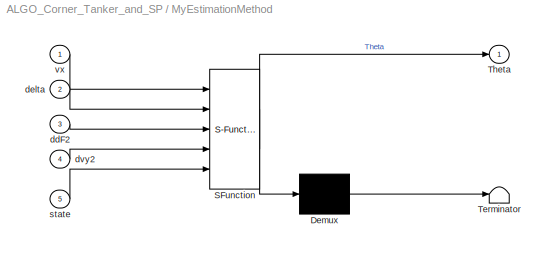
BLOCK [SubSystem] MyEstimationMethod
  Commented = on
  ErrorFcn = Stateflow.Translate.translate
  PermitHierarchicalResolution = ExplicitOnly
  Ports = [5, 1]
  RequestExecContextInheritance = off
  SFBlockType = MATLAB Function
  SID = 237
  SystemSampleTime = 0.005
  TreatAsAtomicUnit = on
BLOCK [Demux] MyEstimationMethod/ Demux 
  Outputs = 1
  Ports = [1, 1]
  SID = 237::20
BLOCK [S-Function] MyEstimationMethod/ SFunction 
  EnableBusSupport = on
  FunctionName = sf_sfun
  PortCounts = [5 2]
  Ports = [5, 2]
  SFcnIsStateOwnerBlock = off
  SFunctionDeploymentMode = off
  SID = 237::19
  Tag = Stateflow S-Function ALGO_Corner_Tanker_and_SP 4
BLOCK [Terminator] MyEstimationMethod/ Terminator 
  SID = 237::21
BLOCK [Outport] MyEstimationMethod/Theta
  IconDisplay = Port number
  SID = 237::5
BLOCK [Inport] MyEstimationMethod/ddF2
  IconDisplay = Port number
  Port = 3
  SID = 237::29
BLOCK [Inport] MyEstimationMethod/delta
  IconDisplay = Port number
  Port = 2
  SID = 237::22
BLOCK [Inport] MyEstimationMethod/dvy2
  IconDisplay = Port number
  Port = 4
  SID = 237::30
BLOCK [Inport] MyEstimationMethod/state
  IconDisplay = Port number
  Port = 5
  SID = 237::1
BLOCK [Inport] MyEstimationMethod/vx
  IconDisplay = Port number
  SID = 237::28
BLOCK [SubSystem] SP_Model
  ErrorFcn = Stateflow.Translate.translate
  PermitHierarchicalResolution = ExplicitOnly
  Ports = [2, 2]
  RequestExecContextInheritance = off
  SFBlockType = MATLAB Function
  SID = 96
  SystemSampleTime = 0.005
  TreatAsAtomicUnit = on
BLOCK [Demux] SP_Model/ Demux 
  Outputs = 1
  Ports = [1, 1]
  SID = 96::20
BLOCK [S-Function] SP_Model/ SFunction 
  EnableBusSupport = on
  FunctionName = sf_sfun
  PortCounts = [2 3]
  Ports = [2, 3]
  SFcnIsStateOwnerBlock = off
  SFunctionDeploymentMode = off
  SID = 96::19
  Tag = Stateflow S-Function ALGO_Corner_Tanker_and_SP 1
BLOCK [Terminator] SP_Model/ Terminator 
  SID = 96::21
BLOCK [Outport] SP_Model/ExForce
  IconDisplay = Port number
  SID = 96::5
BLOCK [Outport] SP_Model/Theta
  IconDisplay = Port number
  Port = 2
  SID = 96::23
BLOCK [Inport] SP_Model/ddF
  IconDisplay = Port number
  Port = 2
  SID = 96::22
BLOCK [Inport] SP_Model/ddy
  IconDisplay = Port number
  SID = 96::1
BLOCK [Scope] Scope
  Floating = off
  NumInputPorts = 6
  Ports = [6]
  SID = 60
  ScopeSpecificationString = Simulink.scopes.TimeScopeBlockCfg('CurrentConfiguration', extmgr.ConfigurationSet(extmgr.Configuration('Core','General UI',true),extmgr.Configuration('Core','Source UI',true),extmgr.Configuration('Sources','WiredSimulink',true),extmgr.Configuration('Visuals','Time Domain',true,'SerializedDisplays',{struct('MinYLimReal','-3.99985','MaxYLimReal','4.73302','YLabelReal','','MinYLimMag','0.00000','MaxY...<+4974ch>
BLOCK [Scope] Scope1
  Floating = off
  NumInputPorts = 3
  Ports = [3]
  SID = 70
  ScopeSpecificationString = Simulink.scopes.TimeScopeBlockCfg('CurrentConfiguration', extmgr.ConfigurationSet(extmgr.Configuration('Core','General UI',true),extmgr.Configuration('Core','Source UI',true),extmgr.Configuration('Sources','WiredSimulink',true,'DataLoggingVariableName','ScopeData1'),extmgr.Configuration('Visuals','Time Domain',true,'SerializedDisplays',{struct('MinYLimReal','-2.462','MaxYLimReal','4.7093','YLabelR...<+2801ch>
BLOCK [Scope] Scope2
  Floating = off
  NumInputPorts = 3
  Ports = [3]
  SID = 119
  ScopeSpecificationString = Simulink.scopes.TimeScopeBlockCfg('CurrentConfiguration', extmgr.ConfigurationSet(extmgr.Configuration('Core','General UI',true),extmgr.Configuration('Core','Source UI',true),extmgr.Configuration('Sources','WiredSimulink',true,'DataLoggingVariableName','ScopeData2'),extmgr.Configuration('Visuals','Time Domain',true,'SerializedDisplays',{struct('MinYLimReal','-179648.16937','MaxYLimReal','198379.04...<+1464ch>
BLOCK [Scope] Scope3
  Commented = on
  Floating = off
  NumInputPorts = 2
  Ports = [2]
  SID = 168
  ScopeSpecificationString = Simulink.scopes.TimeScopeBlockCfg('CurrentConfiguration', extmgr.ConfigurationSet(extmgr.Configuration('Core','General UI',true),extmgr.Configuration('Core','Source UI',true),extmgr.Configuration('Sources','WiredSimulink',true,'DataLoggingVariableName','ScopeData3'),extmgr.Configuration('Visuals','Time Domain',true,'SerializedDisplays',{struct('MinYLimReal','-1.80454','MaxYLimReal','1.27604','YLab...<+2106ch>
BLOCK [Scope] Scope4
  Floating = off
  NumInputPorts = 1
  Ports = [1]
  SID = 426
  ScopeSpecificationString = Simulink.scopes.TimeScopeBlockCfg('CurrentConfiguration', extmgr.ConfigurationSet(extmgr.Configuration('Core','General UI',true),extmgr.Configuration('Core','Source UI',true),extmgr.Configuration('Sources','WiredSimulink',true,'DataLoggingVariableName','ScopeData5'),extmgr.Configuration('Visuals','Time Domain',true,'SerializedDisplays',{struct('MinYLimReal','-1.08562','MaxYLimReal','1.2479','YLabe...<+1403ch>
BLOCK [Terminator] Terminator
  SID = 416
BLOCK [SubSystem] Theta_Estimation
  Commented = on
  ErrorFcn = Stateflow.Translate.translate
  PermitHierarchicalResolution = ExplicitOnly
  Ports = [5, 1]
  RequestExecContextInheritance = off
  SFBlockType = MATLAB Function
  SID = 144
  SystemSampleTime = 0.005
  TreatAsAtomicUnit = on
BLOCK [Demux] Theta_Estimation/ Demux 
  Outputs = 1
  Ports = [1, 1]
  SID = 144::20
BLOCK [S-Function] Theta_Estimation/ SFunction 
  EnableBusSupport = on
  FunctionName = sf_sfun
  PortCounts = [5 2]
  Ports = [5, 2]
  SFcnIsStateOwnerBlock = off
  SFunctionDeploymentMode = off
  SID = 144::19
  Tag = Stateflow S-Function ALGO_Corner_Tanker_and_SP 2
BLOCK [Terminator] Theta_Estimation/ Terminator 
  SID = 144::21
BLOCK [Outport] Theta_Estimation/Theta
  IconDisplay = Port number
  SID = 144::5
BLOCK [Inport] Theta_Estimation/ddF2
  IconDisplay = Port number
  Port = 3
  SID = 144::29
BLOCK [Inport] Theta_Estimation/delta
  IconDisplay = Port number
  Port = 2
  SID = 144::22
BLOCK [Inport] Theta_Estimation/dvy2
  IconDisplay = Port number
  Port = 4
  SID = 144::30
BLOCK [Inport] Theta_Estimation/state
  IconDisplay = Port number
  Port = 5
  SID = 144::1
BLOCK [Inport] Theta_Estimation/vx
  IconDisplay = Port number
  SID = 144::28
BLOCK [SubSystem] Theta_Estimation1
  Commented = on
  ErrorFcn = Stateflow.Translate.translate
  PermitHierarchicalResolution = ExplicitOnly
  Ports = [3, 1]
  RequestExecContextInheritance = off
  SFBlockType = MATLAB Function
  SID = 212
  SystemSampleTime = 0.005
  TreatAsAtomicUnit = on
BLOCK [Demux] Theta_Estimation1/ Demux 
  Outputs = 1
  Ports = [1, 1]
  SID = 212::20
BLOCK [S-Function] Theta_Estimation1/ SFunction 
  EnableBusSupport = on
  FunctionName = sf_sfun
  PortCounts = [3 2]
  Ports = [3, 2]
  SFcnIsStateOwnerBlock = off
  SFunctionDeploymentMode = off
  SID = 212::19
  Tag = Stateflow S-Function ALGO_Corner_Tanker_and_SP 3
BLOCK [Terminator] Theta_Estimation1/ Terminator 
  SID = 212::21
BLOCK [Outport] Theta_Estimation1/Theta
  IconDisplay = Port number
  SID = 212::5
BLOCK [Inport] Theta_Estimation1/delta
  IconDisplay = Port number
  Port = 2
  SID = 212::22
BLOCK [Inport] Theta_Estimation1/state
  IconDisplay = Port number
  Port = 3
  SID = 212::1
BLOCK [Inport] Theta_Estimation1/vx
  IconDisplay = Port number
  SID = 212::28
BLOCK [ToWorkspace] To Workspace
  Commented = on
  FixptAsFi = on
  MaxDataPoints = inf
  Ports = [1]
  SID = 61
  SampleTime = -1
  SaveFormat = Timeseries
  VariableName = TruckState
BLOCK [ToWorkspace] To Workspace1
  Commented = on
  FixptAsFi = on
  MaxDataPoints = inf
  Ports = [1]
  SID = 240
  SampleTime = -1
  SaveFormat = Timeseries
  VariableName = state
BLOCK [ToWorkspace] To Workspace2
  FixptAsFi = on
  MaxDataPoints = inf
  Ports = [1]
  SID = 241
  SampleTime = -1
  SaveFormat = Timeseries
  VariableName = delta
BLOCK [ToWorkspace] To Workspace3
  FixptAsFi = on
  MaxDataPoints = inf
  Ports = [1]
  SID = 242
  SampleTime = -1
  SaveFormat = Timeseries
  VariableName = vx
BLOCK [ToWorkspace] To Workspace4
  FixptAsFi = on
  MaxDataPoints = inf
  Ports = [1]
  SID = 243
  SampleTime = -1
  SaveFormat = Timeseries
  VariableName = Theta
BLOCK [Reference] Tracker  REF=simulink/Sinks/XY Graph
  Ports = [2]
  SID = 63
  SourceBlock = simulink/Sinks/XY Graph
  SourceProductBaseCode = SL
  SourceProductName = Simulink
  SourceType = XY scope.
  st = -1
  xmax = 80
  xmin = -5
  ymax = 80
  ymin = -5
BLOCK [Reference] Trailor   REF=simulink/Sinks/XY Graph
  Commented = on
  Ports = [2]
  SID = 64
  SourceBlock = simulink/Sinks/XY Graph
  SourceProductBaseCode = SL
  SourceProductName = Simulink
  SourceType = XY scope.
  st = -1
  xmax = 250
  xmin = -10
  ymax = 20
  ymin = -20
BLOCK [Reference] TruckSim S-Function  REF=Solver_SF/TruckSim S-Function
  MultiThreadCoSim = auto
  Ports = [1, 1]
  Priority = 1
  SID = 1
  SIMFILE = ALGO_Corner_Tanker_TrajTrack_Baseline.sim
  SourceBlock = Solver_SF/TruckSim S-Function
  SourceType = Vehicle math model library
BLOCK [Gain] kph2ms
  Gain = 1/3.6
  OutDataTypeStr = Inherit: Inherit via internal rule
  ParamDataTypeStr = Inherit: Inherit via internal rule
  SID = 147
  SaturateOnIntegerOverflow = off
BLOCK [Gain] kph2ms1
  Gain = 1/3.6
  OutDataTypeStr = Inherit: Inherit via internal rule
  ParamDataTypeStr = Inherit: Inherit via internal rule
  SID = 148
  SaturateOnIntegerOverflow = off
BLOCK [Gain] kph2ms2
  Commented = on
  Gain = 1/3.6
  OutDataTypeStr = Inherit: Inherit via internal rule
  ParamDataTypeStr = Inherit: Inherit via internal rule
  SID = 181
  SaturateOnIntegerOverflow = off
BLOCK [Gain] kph2ms3
  Commented = on
  Gain = 1/3.6
  OutDataTypeStr = Inherit: Inherit via internal rule
  ParamDataTypeStr = Inherit: Inherit via internal rule
  SID = 182
  SaturateOnIntegerOverflow = off
BLOCK [Gain] kph2ms4
  Commented = on
  Gain = 1/3.6
  OutDataTypeStr = Inherit: Inherit via internal rule
  ParamDataTypeStr = Inherit: Inherit via internal rule
  SID = 201
  SaturateOnIntegerOverflow = off
BLOCK [Gain] kph2ms6
  Commented = on
  Gain = 1/3.6
  OutDataTypeStr = Inherit: Inherit via internal rule
  ParamDataTypeStr = Inherit: Inherit via internal rule
  SID = 238
  SaturateOnIntegerOverflow = off
BLOCK [Fcn] mean
  Expr = (u(1)+u(2))/2
  SID = 208
BLOCK [Scope] ǣ�����켣���\n���켣����Ծ��룩
  Floating = off
  NumInputPorts = 1
  Ports = [1]
  SID = 407
  ScopeSpecificationString = Simulink.scopes.TimeScopeBlockCfg('CurrentConfiguration', extmgr.ConfigurationSet(extmgr.Configuration('Core','General UI',true),extmgr.Configuration('Core','Source UI',true),extmgr.Configuration('Sources','WiredSimulink',true,'DataLoggingVariableName','ScopeData4'),extmgr.Configuration('Visuals','Time Domain',true,'SerializedDisplays',{struct('MinYLimReal','-1155824240.26959','MaxYLimReal','10402...<+1471ch>
ANNOTATION (root): ״̬�����
ANNOTATION (root): �۲���
ANNOTATION (root): ��ģ��
ANNOTATION (root): ��װ�ⲿ��
ANNOTATION (root): ��״̬����
ANNOTATION (root): ����ģ��
ANNOTATION (root): ��������
ANNOTATION 5DOFǣ������ҳ�ģ�� 50%Һ�� ����ģ��: 5DOF LTV ����ʱ�䳵��ģ��
ANNOTATION 5DOFǣ������ҳ�ģ�� 50%Һ�� ����ģ��: 5DOFǣ������ҳ�ģ�� 50%Һ�� ����ģ��
ANNOTATION 5DOFǣ������ҳ�ģ�� 50%Һ�� ����ģ��: SP����
ANNOTATION 5DOFǣ������ҳ�ģ�� 50%Һ�� ����ģ��: ״̬���ֽ�
ANNOTATION 5DOFǣ������ҳ�ģ�� 50%Һ�� ����ģ��: �۲���
ANNOTATION 5DOFǣ������ҳ�ģ�� 50%Һ�� ����ģ��: <unrecoverable-encoding: 157 bytes efbfbdefbfbdefbfbdefbfbd... md5=1bff51d8>
ANNOTATION 5DOFǣ������ҳ�ģ�� 50%Һ�� ����ģ��: ������
LINE 5DOFǣ������ҳ�ģ�� 50%Һ�� ����ģ��/2s5deg:1 -> 5DOFǣ������ҳ�ģ�� 50%Һ�� ����ģ��/deg2rad:1
NET 5DOFǣ������ҳ�ģ�� 50%Һ�� ����ģ��/Constant1:1 -> 5DOFǣ������ҳ�ģ�� 50%Һ�� ����ģ��/kph2ms5:1, 5DOFǣ������ҳ�ģ�� 50%Һ�� ����ģ��/kph2ms7:1
LINE 5DOFǣ������ҳ�ģ�� 50%Һ�� ����ģ��/Demux2:1 -> 5DOFǣ������ҳ�ģ�� 50%Һ�� ����ģ��/Goto56:1
LINE 5DOFǣ������ҳ�ģ�� 50%Һ�� ����ģ��/Demux2:10 -> 5DOFǣ������ҳ�ģ�� 50%Һ�� ����ģ��/Goto47:1
LINE 5DOFǣ������ҳ�ģ�� 50%Һ�� ����ģ��/Demux2:11 -> 5DOFǣ������ҳ�ģ�� 50%Һ�� ����ģ��/Goto37:1
LINE 5DOFǣ������ҳ�ģ�� 50%Һ�� ����ģ��/Demux2:12 -> 5DOFǣ������ҳ�ģ�� 50%Һ�� ����ģ��/Goto38:1
LINE 5DOFǣ������ҳ�ģ�� 50%Һ�� ����ģ��/Demux2:13 -> 5DOFǣ������ҳ�ģ�� 50%Һ�� ����ģ��/Goto43:1
LINE 5DOFǣ������ҳ�ģ�� 50%Һ�� ����ģ��/Demux2:14 -> 5DOFǣ������ҳ�ģ�� 50%Һ�� ����ģ��/Goto44:1
LINE 5DOFǣ������ҳ�ģ�� 50%Һ�� ����ģ��/Demux2:15 -> 5DOFǣ������ҳ�ģ�� 50%Һ�� ����ģ��/Goto39:1
LINE 5DOFǣ������ҳ�ģ�� 50%Һ�� ����ģ��/Demux2:16 -> 5DOFǣ������ҳ�ģ�� 50%Һ�� ����ģ��/Goto40:1
LINE 5DOFǣ������ҳ�ģ�� 50%Һ�� ����ģ��/Demux2:17 -> 5DOFǣ������ҳ�ģ�� 50%Һ�� ����ģ��/Goto41:1
LINE 5DOFǣ������ҳ�ģ�� 50%Һ�� ����ģ��/Demux2:18 -> 5DOFǣ������ҳ�ģ�� 50%Һ�� ����ģ��/Goto42:1
LINE 5DOFǣ������ҳ�ģ�� 50%Һ�� ����ģ��/Demux2:2 -> 5DOFǣ������ҳ�ģ�� 50%Һ�� ����ģ��/Goto57:1
LINE 5DOFǣ������ҳ�ģ�� 50%Һ�� ����ģ��/Demux2:3 -> 5DOFǣ������ҳ�ģ�� 50%Һ�� ����ģ��/Goto58:1
LINE 5DOFǣ������ҳ�ģ�� 50%Һ�� ����ģ��/Demux2:4 -> 5DOFǣ������ҳ�ģ�� 50%Һ�� ����ģ��/Goto59:1
LINE 5DOFǣ������ҳ�ģ�� 50%Һ�� ����ģ��/Demux2:5 -> 5DOFǣ������ҳ�ģ�� 50%Һ�� ����ģ��/Goto60:1
LINE 5DOFǣ������ҳ�ģ�� 50%Һ�� ����ģ��/Demux2:6 -> 5DOFǣ������ҳ�ģ�� 50%Һ�� ����ģ��/Goto61:1
LINE 5DOFǣ������ҳ�ģ�� 50%Һ�� ����ģ��/Demux2:7 -> 5DOFǣ������ҳ�ģ�� 50%Һ�� ����ģ��/Goto62:1
LINE 5DOFǣ������ҳ�ģ�� 50%Һ�� ����ģ��/Demux2:8 -> 5DOFǣ������ҳ�ģ�� 50%Һ�� ����ģ��/Goto36:1
LINE 5DOFǣ������ҳ�ģ�� 50%Һ�� ����ģ��/Demux2:9 -> 5DOFǣ������ҳ�ģ�� 50%Һ�� ����ģ��/Goto45:1
LINE 5DOFǣ������ҳ�ģ�� 50%Һ�� ����ģ��/Demux8:1 -> 5DOFǣ������ҳ�ģ�� 50%Һ�� ����ģ��/Goto50:1
LINE 5DOFǣ������ҳ�ģ�� 50%Һ�� ����ģ��/Demux8:2 -> 5DOFǣ������ҳ�ģ�� 50%Һ�� ����ģ��/Goto53:1
LINE 5DOFǣ������ҳ�ģ�� 50%Һ�� ����ģ��/Demux8:3 -> 5DOFǣ������ҳ�ģ�� 50%Һ�� ����ģ��/Goto54:1
LINE 5DOFǣ������ҳ�ģ�� 50%Һ�� ����ģ��/Demux9:1 -> 5DOFǣ������ҳ�ģ�� 50%Һ�� ����ģ��/Goto51:1
LINE 5DOFǣ������ҳ�ģ�� 50%Һ�� ����ģ��/Demux9:2 -> 5DOFǣ������ҳ�ģ�� 50%Һ�� ����ģ��/Goto52:1
LINE 5DOFǣ������ҳ�ģ�� 50%Һ�� ����ģ��/Discrete Derivative13:1 -> 5DOFǣ������ҳ�ģ�� 50%Һ�� ����ģ��/SP_Model_50per:2
LINE 5DOFǣ������ҳ�ģ�� 50%Һ�� ����ģ��/Discrete Derivative14:1 -> 5DOFǣ������ҳ�ģ�� 50%Һ�� ����ģ��/Mux22:1
LINE 5DOFǣ������ҳ�ģ�� 50%Һ�� ����ģ��/Fcn:1 -> 5DOFǣ������ҳ�ģ�� 50%Һ�� ����ģ��/Goto55:1
LINE 5DOFǣ������ҳ�ģ�� 50%Һ�� ����ģ��/From100:1 -> 5DOFǣ������ҳ�ģ�� 50%Һ�� ����ģ��/Gain23:1
LINE 5DOFǣ������ҳ�ģ�� 50%Һ�� ����ģ��/From101:1 -> 5DOFǣ������ҳ�ģ�� 50%Һ�� ����ģ��/Gain17:1
LINE 5DOFǣ������ҳ�ģ�� 50%Һ�� ����ģ��/From102:1 -> 5DOFǣ������ҳ�ģ�� 50%Һ�� ����ģ��/Gain24:1
LINE 5DOFǣ������ҳ�ģ�� 50%Һ�� ����ģ��/From103:1 -> 5DOFǣ������ҳ�ģ�� 50%Һ�� ����ģ��/Gain25:1
LINE 5DOFǣ������ҳ�ģ�� 50%Һ�� ����ģ��/From67:1 -> 5DOFǣ������ҳ�ģ�� 50%Һ�� ����ģ��/TrailorTruck_5DOF_SP_50per:1
LINE 5DOFǣ������ҳ�ģ�� 50%Һ�� ����ģ��/From68:1 -> 5DOFǣ������ҳ�ģ�� 50%Һ�� ����ģ��/TrailorTruck_5DOF_SP_50per:2
LINE 5DOFǣ������ҳ�ģ�� 50%Һ�� ����ģ��/From69:1 -> 5DOFǣ������ҳ�ģ�� 50%Һ�� ����ģ��/Gain26:1
LINE 5DOFǣ������ҳ�ģ�� 50%Һ�� ����ģ��/From70:1 -> 5DOFǣ������ҳ�ģ�� 50%Һ�� ����ģ��/Gain18:1
LINE 5DOFǣ������ҳ�ģ�� 50%Һ�� ����ģ��/From71:1 -> 5DOFǣ������ҳ�ģ�� 50%Һ�� ����ģ��/Gain19:1
LINE 5DOFǣ������ҳ�ģ�� 50%Һ�� ����ģ��/From72:1 -> 5DOFǣ������ҳ�ģ�� 50%Һ�� ����ģ��/Gain20:1
LINE 5DOFǣ������ҳ�ģ�� 50%Һ�� ����ģ��/From73:1 -> 5DOFǣ������ҳ�ģ�� 50%Һ�� ����ģ��/Gain27:1
LINE 5DOFǣ������ҳ�ģ�� 50%Һ�� ����ģ��/From74:1 -> 5DOFǣ������ҳ�ģ�� 50%Һ�� ����ģ��/Mux19:2
LINE 5DOFǣ������ҳ�ģ�� 50%Һ�� ����ģ��/From75:1 -> 5DOFǣ������ҳ�ģ�� 50%Һ�� ����ģ��/Mux19:1
LINE 5DOFǣ������ҳ�ģ�� 50%Һ�� ����ģ��/From76:1 -> 5DOFǣ������ҳ�ģ�� 50%Һ�� ����ģ��/Mux19:4
LINE 5DOFǣ������ҳ�ģ�� 50%Һ�� ����ģ��/From77:1 -> 5DOFǣ������ҳ�ģ�� 50%Һ�� ����ģ��/Mux19:3
LINE 5DOFǣ������ҳ�ģ�� 50%Һ�� ����ģ��/From78:1 -> 5DOFǣ������ҳ�ģ�� 50%Һ�� ����ģ��/Tracker1:1
LINE 5DOFǣ������ҳ�ģ�� 50%Һ�� ����ģ��/From79:1 -> 5DOFǣ������ҳ�ģ�� 50%Һ�� ����ģ��/Demux2:1
LINE 5DOFǣ������ҳ�ģ�� 50%Һ�� ����ģ��/From80:1 -> 5DOFǣ������ҳ�ģ�� 50%Һ�� ����ģ��/Tracker1:2
LINE 5DOFǣ������ҳ�ģ�� 50%Һ�� ����ģ��/From81:1 -> 5DOFǣ������ҳ�ģ�� 50%Һ�� ����ģ��/Trailor 1:2
LINE 5DOFǣ������ҳ�ģ�� 50%Һ�� ����ģ��/From82:1 -> 5DOFǣ������ҳ�ģ�� 50%Һ�� ����ģ��/Trailor 1:1
LINE 5DOFǣ������ҳ�ģ�� 50%Һ�� ����ģ��/From83:1 -> 5DOFǣ������ҳ�ģ�� 50%Һ�� ����ģ��/SP_Model_50per:1
LINE 5DOFǣ������ҳ�ģ�� 50%Һ�� ����ģ��/From84:1 -> 5DOFǣ������ҳ�ģ�� 50%Һ�� ����ģ��/Mux20:2
LINE 5DOFǣ������ҳ�ģ�� 50%Һ�� ����ģ��/From85:1 -> 5DOFǣ������ҳ�ģ�� 50%Һ�� ����ģ��/Demux8:1
LINE 5DOFǣ������ҳ�ģ�� 50%Һ�� ����ģ��/From86:1 -> 5DOFǣ������ҳ�ģ�� 50%Һ�� ����ģ��/Demux9:1
LINE 5DOFǣ������ҳ�ģ�� 50%Һ�� ����ģ��/From87:1 -> 5DOFǣ������ҳ�ģ�� 50%Һ�� ����ģ��/Discrete Derivative13:1
LINE 5DOFǣ������ҳ�ģ�� 50%Һ�� ����ģ��/From88:1 -> 5DOFǣ������ҳ�ģ�� 50%Һ�� ����ģ��/Mux21:2
LINE 5DOFǣ������ҳ�ģ�� 50%Һ�� ����ģ��/From89:1 -> 5DOFǣ������ҳ�ģ�� 50%Һ�� ����ģ��/Mux20:1
LINE 5DOFǣ������ҳ�ģ�� 50%Һ�� ����ģ��/From90:1 -> 5DOFǣ������ҳ�ģ�� 50%Һ�� ����ģ��/Gain15:1
LINE 5DOFǣ������ҳ�ģ�� 50%Һ�� ����ģ��/From91:1 -> 5DOFǣ������ҳ�ģ�� 50%Һ�� ����ģ��/Mux21:1
LINE 5DOFǣ������ҳ�ģ�� 50%Һ�� ����ģ��/From92:1 -> 5DOFǣ������ҳ�ģ�� 50%Һ�� ����ģ��/Mux22:3
LINE 5DOFǣ������ҳ�ģ�� 50%Һ�� ����ģ��/From93:1 -> 5DOFǣ������ҳ�ģ�� 50%Һ�� ����ģ��/Mux22:2
LINE 5DOFǣ������ҳ�ģ�� 50%Һ�� ����ģ��/From94:1 -> 5DOFǣ������ҳ�ģ�� 50%Һ�� ����ģ��/Discrete Derivative14:1
LINE 5DOFǣ������ҳ�ģ�� 50%Һ�� ����ģ��/From95:1 -> 5DOFǣ������ҳ�ģ�� 50%Һ�� ����ģ��/Mux14:1
LINE 5DOFǣ������ҳ�ģ�� 50%Һ�� ����ģ��/From96:1 -> 5DOFǣ������ҳ�ģ�� 50%Һ�� ����ģ��/Mux14:2
LINE 5DOFǣ������ҳ�ģ�� 50%Һ�� ����ģ��/From97:1 -> 5DOFǣ������ҳ�ģ�� 50%Һ�� ����ģ��/Mux14:3
LINE 5DOFǣ������ҳ�ģ�� 50%Һ�� ����ģ��/From98:1 -> 5DOFǣ������ҳ�ģ�� 50%Һ�� ����ģ��/Gain21:1
LINE 5DOFǣ������ҳ�ģ�� 50%Һ�� ����ģ��/From99:1 -> 5DOFǣ������ҳ�ģ�� 50%Һ�� ����ģ��/Gain22:1
LINE 5DOFǣ������ҳ�ģ�� 50%Һ�� ����ģ��/Gain15:1 -> 5DOFǣ������ҳ�ģ�� 50%Һ�� ����ģ��/Mux12:1
LINE 5DOFǣ������ҳ�ģ�� 50%Һ�� ����ģ��/Gain17:1 -> 5DOFǣ������ҳ�ģ�� 50%Һ�� ����ģ��/Mux16:1
LINE 5DOFǣ������ҳ�ģ�� 50%Һ�� ����ģ��/Gain18:1 -> 5DOFǣ������ҳ�ģ�� 50%Һ�� ����ģ��/Mux18:1
LINE 5DOFǣ������ҳ�ģ�� 50%Һ�� ����ģ��/Gain19:1 -> 5DOFǣ������ҳ�ģ�� 50%Һ�� ����ģ��/Mux18:2
LINE 5DOFǣ������ҳ�ģ�� 50%Һ�� ����ģ��/Gain20:1 -> 5DOFǣ������ҳ�ģ�� 50%Һ�� ����ģ��/Mux13:1
LINE 5DOFǣ������ҳ�ģ�� 50%Һ�� ����ģ��/Gain21:1 -> 5DOFǣ������ҳ�ģ�� 50%Һ�� ����ģ��/Mux12:2
LINE 5DOFǣ������ҳ�ģ�� 50%Һ�� ����ģ��/Gain22:1 -> 5DOFǣ������ҳ�ģ�� 50%Һ�� ����ģ��/Mux12:3
LINE 5DOFǣ������ҳ�ģ�� 50%Һ�� ����ģ��/Gain23:1 -> 5DOFǣ������ҳ�ģ�� 50%Һ�� ����ģ��/Mux12:4
LINE 5DOFǣ������ҳ�ģ�� 50%Һ�� ����ģ��/Gain24:1 -> 5DOFǣ������ҳ�ģ�� 50%Һ�� ����ģ��/Mux16:2
LINE 5DOFǣ������ҳ�ģ�� 50%Һ�� ����ģ��/Gain25:1 -> 5DOFǣ������ҳ�ģ�� 50%Һ�� ����ģ��/Mux17:1
LINE 5DOFǣ������ҳ�ģ�� 50%Һ�� ����ģ��/Gain26:1 -> 5DOFǣ������ҳ�ģ�� 50%Һ�� ����ģ��/Mux17:2
LINE 5DOFǣ������ҳ�ģ�� 50%Һ�� ����ģ��/Gain27:1 -> 5DOFǣ������ҳ�ģ�� 50%Һ�� ����ģ��/Mux13:2
LINE 5DOFǣ������ҳ�ģ�� 50%Һ�� ����ģ��/Mux12:1 -> 5DOFǣ������ҳ�ģ�� 50%Һ�� ����ģ��/Scope4:1
LINE 5DOFǣ������ҳ�ģ�� 50%Һ�� ����ģ��/Mux13:1 -> 5DOFǣ������ҳ�ģ�� 50%Һ�� ����ģ��/Scope4:4
LINE 5DOFǣ������ҳ�ģ�� 50%Һ�� ����ģ��/Mux14:1 -> 5DOFǣ������ҳ�ģ�� 50%Һ�� ����ģ��/Scope6:1
LINE 5DOFǣ������ҳ�ģ�� 50%Һ�� ����ģ��/Mux15:1 -> 5DOFǣ������ҳ�ģ�� 50%Һ�� ����ģ��/Goto35:1
LINE 5DOFǣ������ҳ�ģ�� 50%Һ�� ����ģ��/Mux16:1 -> 5DOFǣ������ҳ�ģ�� 50%Һ�� ����ģ��/Scope4:2
LINE 5DOFǣ������ҳ�ģ�� 50%Һ�� ����ģ��/Mux17:1 -> 5DOFǣ������ҳ�ģ�� 50%Һ�� ����ģ��/Scope4:3
LINE 5DOFǣ������ҳ�ģ�� 50%Һ�� ����ģ��/Mux18:1 -> 5DOFǣ������ҳ�ģ�� 50%Һ�� ����ģ��/Scope4:5
LINE 5DOFǣ������ҳ�ģ�� 50%Һ�� ����ģ��/Mux19:1 -> 5DOFǣ������ҳ�ģ�� 50%Һ�� ����ģ��/Scope4:6
LINE 5DOFǣ������ҳ�ģ�� 50%Һ�� ����ģ��/Mux20:1 -> 5DOFǣ������ҳ�ģ�� 50%Һ�� ����ģ��/Scope5:1
LINE 5DOFǣ������ҳ�ģ�� 50%Һ�� ����ģ��/Mux21:1 -> 5DOFǣ������ҳ�ģ�� 50%Һ�� ����ģ��/Scope5:2
LINE 5DOFǣ������ҳ�ģ�� 50%Һ�� ����ģ��/Mux22:1 -> 5DOFǣ������ҳ�ģ�� 50%Һ�� ����ģ��/Fcn:1
LINE 5DOFǣ������ҳ�ģ�� 50%Һ�� ����ģ��/SP_Model_50per/ Demux :1 -> 5DOFǣ������ҳ�ģ�� 50%Һ�� ����ģ��/SP_Model_50per/ Terminator :1
LINE 5DOFǣ������ҳ�ģ�� 50%Һ�� ����ģ��/SP_Model_50per/ SFunction :1 -> 5DOFǣ������ҳ�ģ�� 50%Һ�� ����ģ��/SP_Model_50per/ Demux :1
LINE 5DOFǣ������ҳ�ģ�� 50%Һ�� ����ģ��/SP_Model_50per/ SFunction :2 -> 5DOFǣ������ҳ�ģ�� 50%Һ�� ����ģ��/SP_Model_50per/ExForce:1
LINE 5DOFǣ������ҳ�ģ�� 50%Һ�� ����ģ��/SP_Model_50per/ SFunction :3 -> 5DOFǣ������ҳ�ģ�� 50%Һ�� ����ģ��/SP_Model_50per/Theta:1
LINE 5DOFǣ������ҳ�ģ�� 50%Һ�� ����ģ��/SP_Model_50per/ddF:1 -> 5DOFǣ������ҳ�ģ�� 50%Һ�� ����ģ��/SP_Model_50per/ SFunction :2
LINE 5DOFǣ������ҳ�ģ�� 50%Һ�� ����ģ��/SP_Model_50per/ddy:1 -> 5DOFǣ������ҳ�ģ�� 50%Һ�� ����ģ��/SP_Model_50per/ SFunction :1
LINE 5DOFǣ������ҳ�ģ�� 50%Һ�� ����ģ��/SP_Model_50per:1 -> 5DOFǣ������ҳ�ģ�� 50%Һ�� ����ģ��/Goto48:1
LINE 5DOFǣ������ҳ�ģ�� 50%Һ�� ����ģ��/SP_Model_50per:2 -> 5DOFǣ������ҳ�ģ�� 50%Һ�� ����ģ��/Goto49:1
LINE 5DOFǣ������ҳ�ģ�� 50%Һ�� ����ģ��/SteeringDyn:1 -> 5DOFǣ������ҳ�ģ�� 50%Һ�� ����ģ��/Goto46:1
LINE 5DOFǣ������ҳ�ģ�� 50%Һ�� ����ģ��/TrailorTruck_5DOF_SP_50per/ Demux :1 -> 5DOFǣ������ҳ�ģ�� 50%Һ�� ����ģ��/TrailorTruck_5DOF_SP_50per/ Terminator :1
LINE 5DOFǣ������ҳ�ģ�� 50%Һ�� ����ģ��/TrailorTruck_5DOF_SP_50per/ SFunction :1 -> 5DOFǣ������ҳ�ģ�� 50%Һ�� ����ģ��/TrailorTruck_5DOF_SP_50per/ Demux :1
LINE 5DOFǣ������ҳ�ģ�� 50%Һ�� ����ģ��/TrailorTruck_5DOF_SP_50per/ SFunction :2 -> 5DOFǣ������ҳ�ģ�� 50%Һ�� ����ģ��/TrailorTruck_5DOF_SP_50per/state:1
LINE 5DOFǣ������ҳ�ģ�� 50%Һ�� ����ģ��/TrailorTruck_5DOF_SP_50per/ SFunction :3 -> 5DOFǣ������ҳ�ģ�� 50%Һ�� ����ģ��/TrailorTruck_5DOF_SP_50per/observe:1
LINE 5DOFǣ������ҳ�ģ�� 50%Һ�� ����ģ��/TrailorTruck_5DOF_SP_50per/delta:1 -> 5DOFǣ������ҳ�ģ�� 50%Һ�� ����ģ��/TrailorTruck_5DOF_SP_50per/ SFunction :2
LINE 5DOFǣ������ҳ�ģ�� 50%Һ�� ����ģ��/TrailorTruck_5DOF_SP_50per/vx:1 -> 5DOFǣ������ҳ�ģ�� 50%Һ�� ����ģ��/TrailorTruck_5DOF_SP_50per/ SFunction :1
LINE 5DOFǣ������ҳ�ģ�� 50%Һ�� ����ģ��/TrailorTruck_5DOF_SP_50per:1 -> 5DOFǣ������ҳ�ģ�� 50%Һ�� ����ģ��/Goto34:1
LINE 5DOFǣ������ҳ�ģ�� 50%Һ�� ����ģ��/TrailorTruck_5DOF_SP_50per:2 -> 5DOFǣ������ҳ�ģ�� 50%Һ�� ����ģ��/ObserveVal:1
LINE 5DOFǣ������ҳ�ģ�� 50%Һ�� ����ģ��/deg2rad:1 -> 5DOFǣ������ҳ�ģ�� 50%Һ�� ����ģ��/SteeringDyn:1
LINE 5DOFǣ������ҳ�ģ�� 50%Һ�� ����ģ��/delta\n:1 -> 5DOFǣ������ҳ�ģ�� 50%Һ�� ����ģ��/Goto1:1
LINE 5DOFǣ������ҳ�ģ�� 50%Һ�� ����ģ��/kph2ms5:1 -> 5DOFǣ������ҳ�ģ�� 50%Һ�� ����ģ��/Mux15:1
LINE 5DOFǣ������ҳ�ģ�� 50%Һ�� ����ģ��/kph2ms7:1 -> 5DOFǣ������ҳ�ģ�� 50%Һ�� ����ģ��/Mux15:2
LINE 5DOFǣ������ҳ�ģ�� 50%Һ�� ����ģ��/vx:1 -> 5DOFǣ������ҳ�ģ�� 50%Һ�� ����ģ��/Goto:1
LINE 5DOFǣ������ҳ�ģ�� 50%Һ�� ����ģ��:1 -> Demux2:1
LINE BracketDyn1:1 -> Goto20:1
LINE BracketDyn2:1 -> Goto21:1
LINE BracketDyn:1 -> Goto15:1
LINE Demux1:1 -> BracketDyn:1
LINE Demux1:2 -> BracketDyn1:1
LINE Demux1:3 -> BracketDyn2:1
LINE Demux2:1 -> Goto35:1
LINE Demux2:2 -> Goto34:1
LINE Demux2:3 -> Goto36:1
LINE Demux2:4 -> Goto37:1
LINE Demux2:5 -> Goto38:1
LINE Demux2:6 -> Goto39:1
LINE Demux2:7 -> Goto40:1
LINE Demux3:1 -> Goto19:1
LINE Demux3:2 -> Goto22:1
LINE Demux4:1 -> Goto23:1
LINE Demux4:2 -> Goto24:1
LINE Demux5:1 -> Goto28:1
LINE Demux5:2 -> Goto29:1
LINE Demux6:1 -> Goto30:1
LINE Demux6:2 -> Goto31:1
LINE Demux7:1 -> Goto32:1
LINE Demux7:2 -> Goto33:1
LINE Demux:1 -> Goto2:1
LINE Demux:10 -> Goto11:1
LINE Demux:11 -> Goto12:1
LINE Demux:12 -> Goto13:1
LINE Demux:13 -> Goto1:1
LINE Demux:14 -> Goto25:1
LINE Demux:15 -> Goto26:1
LINE Demux:2 -> Goto3:1
LINE Demux:3 -> Goto4:1
LINE Demux:4 -> Goto5:1
LINE Demux:5 -> Goto6:1
LINE Demux:6 -> Goto7:1
LINE Demux:7 -> Goto8:1
LINE Demux:8 -> Goto9:1
LINE Demux:9 -> Goto10:1
LINE Discrete Derivative10:1 -> kph2ms4:1
LINE Discrete Derivative11:1 -> Discrete Derivative9:1
LINE Discrete Derivative12:1 -> Gain5:1
LINE Discrete Derivative15:1 -> Discrete Derivative16:1
LINE Discrete Derivative16:1 -> Gain16:1
LINE Discrete Derivative17:1 -> kph2ms6:1
LINE Discrete Derivative1:1 -> Mux2:2
LINE Discrete Derivative2:1 -> Mux5:1
LINE Discrete Derivative3:1 -> Mux5:2
LINE Discrete Derivative4:1 -> Discrete Derivative12:1
LINE Discrete Derivative5:1 -> Gain7:1
LINE Discrete Derivative6:1 -> Gain10:1
LINE Discrete Derivative7:1 -> Gain9:1
LINE Discrete Derivative8:1 -> Gain12:1
LINE Discrete Derivative9:1 -> Gain13:1
LINE Discrete Derivative:1 -> Mux2:1
LINE ErrorDist:1 -> ǣ�����켣���\n���켣����Ծ��룩:1
LINE From10:1 -> Mux4:2
LINE From11:1 -> Discrete Derivative3:1
LINE From12:1 -> Discrete Derivative:1
LINE From13:1 -> Discrete Derivative1:1
LINE From14:1 -> Discrete Derivative2:1
LINE From15:1 -> Mux6:2
LINE From16:1 -> Mux6:1
LINE From17:1 -> Mux6:3
LINE From18:1 -> Mux6:4
LINE From19:1 -> Tracker:2
LINE From1:1 -> TruckSim S-Function:1
LINE From20:1 -> Trailor :1
LINE From21:1 -> Trailor :2
LINE From22:1 -> To Workspace:1
LINE From23:1 -> SP_Model:2
LINE From24:1 -> Mux4:1
LINE From25:1 -> Gain6:1
LINE From26:1 -> Scope2:1
LINE From27:1 -> Scope2:2
LINE From28:1 -> Scope2:3
LINE From29:1 -> Theta_Estimation:1
LINE From2:1 -> Demux:1
LINE From30:1 -> Theta_Estimation:2
LINE From31:1 -> Gain1:1
LINE From32:1 -> Gain2:1
LINE From33:1 -> Mux:9
LINE From34:1 -> Gain3:1
LINE From35:1 -> Discrete Derivative4:1
LINE From36:1 -> kph2ms:1
LINE From37:1 -> kph2ms1:1
LINE From38:1 -> Mux8:2
LINE From39:1 -> Mux9:2
LINE From3:1 -> Tracker:1
LINE From40:1 -> Demux4:1
LINE From41:1 -> Mux8:1
LINE From42:1 -> Mux9:1
LINE From43:1 -> kph2ms2:1
LINE From44:1 -> Discrete Derivative5:1
LINE From45:1 -> Discrete Derivative6:1
LINE From46:1 -> Gain8:1
LINE From47:1 -> Discrete Derivative7:1
LINE From48:1 -> kph2ms3:1
LINE From49:1 -> Gain11:1
LINE From4:1 -> Mux1:1
LINE From50:1 -> Discrete Derivative8:1
LINE From51:1 -> Discrete Derivative11:1
LINE From52:1 -> Discrete Derivative10:1
LINE From53:1 -> Mux11:1
LINE From54:1 -> Mux11:2
LINE From55:1 -> Theta_Estimation1:1
LINE From56:1 -> Theta_Estimation1:2
LINE From57:1 -> To Workspace4:1
LINE From58:1 -> To Workspace3:1
LINE From59:1 -> MyEstimationMethod:1
LINE From5:1 -> Mux1:2
LINE From60:1 -> MyEstimationMethod:2
LINE From61:1 -> Discrete Derivative15:1
LINE From62:1 -> Discrete Derivative17:1
LINE From63:1 -> To Workspace2:1
LINE From64:1 -> LuenbergerSISOestimation:1
LINE From65:1 -> LuenbergerSISOestimation:2
LINE From66:1 -> Gain4:1
LINE From67:1 -> 5DOFǣ������ҳ�ģ�� 50%Һ�� ����ģ��:1
LINE From68:1 -> 5DOFǣ������ҳ�ģ�� 50%Һ�� ����ģ��:2
LINE From69:1 -> Mux12:2
LINE From6:1 -> Mux1:3
LINE From70:1 -> Mux12:4
LINE From71:1 -> Mux12:1
LINE From72:1 -> Mux12:3
LINE From73:1 -> Terminator:1
LINE From74:1 -> Gain15:1
LINE From75:1 -> Gain17:1
LINE From76:1 -> Mux15:1
LINE From77:1 -> Mux15:2
LINE From7:1 -> Mux1:4
LINE From8:1 -> Mux3:1
LINE From9:1 -> Mux3:2
LINE From:1 -> Gain:1
LINE Gain10:1 -> Mux10:6
LINE Gain11:1 -> Mux10:7
LINE Gain12:1 -> Mux10:8
LINE Gain13:1 -> Theta_Estimation:3
LINE Gain14:1 -> Goto27:1
LINE Gain15:1 -> Mux13:2
LINE Gain16:1 -> MyEstimationMethod:3
LINE Gain17:1 -> Mux14:2
NET Gain1:1 -> Mux:1, Mux:2, Mux:3, Mux:4
NET Gain2:1 -> Mux:5, Mux:6, Mux:7, Mux:8
LINE Gain3:1 -> Mux13:1
LINE Gain4:1 -> Mux14:1
LINE Gain5:1 -> Goto18:1
LINE Gain6:1 -> SP_Model:1
LINE Gain7:1 -> Mux10:2
LINE Gain8:1 -> Mux10:3
LINE Gain9:1 -> Mux10:4
LINE Gain:1 -> Scope1:1
LINE LuenbergerSISOestimation/ Demux :1 -> LuenbergerSISOestimation/ Terminator :1
LINE LuenbergerSISOestimation/ SFunction :1 -> LuenbergerSISOestimation/ Demux :1
LINE LuenbergerSISOestimation/ SFunction :2 -> LuenbergerSISOestimation/Theta:1
LINE LuenbergerSISOestimation/delta:1 -> LuenbergerSISOestimation/ SFunction :2
LINE LuenbergerSISOestimation/state:1 -> LuenbergerSISOestimation/ SFunction :3
LINE LuenbergerSISOestimation/vx:1 -> LuenbergerSISOestimation/ SFunction :1
LINE LuenbergerSISOestimation:1 -> Demux3:1
NET Mux10:1 -> LuenbergerSISOestimation:3, MyEstimationMethod:5, Theta_Estimation1:3, Theta_Estimation:5, To Workspace1:1
LINE Mux11:1 -> mean:1
LINE Mux12:1 -> ErrorDist:1
LINE Mux13:1 -> Scope1:2
LINE Mux14:1 -> Scope1:3
LINE Mux15:1 -> Scope4:1
LINE Mux1:1 -> Scope:1
LINE Mux2:1 -> Scope:4
LINE Mux3:1 -> Scope:2
LINE Mux4:1 -> Scope:3
LINE Mux5:1 -> Scope:5
LINE Mux6:1 -> Scope:6
LINE Mux7:1 -> Goto16:1
LINE Mux8:1 -> Scope3:1
LINE Mux9:1 -> Scope3:2
LINE Mux:1 -> Goto14:1
LINE MyEstimationMethod/ Demux :1 -> MyEstimationMethod/ Terminator :1
LINE MyEstimationMethod/ SFunction :1 -> MyEstimationMethod/ Demux :1
LINE MyEstimationMethod/ SFunction :2 -> MyEstimationMethod/Theta:1
LINE MyEstimationMethod/ddF2:1 -> MyEstimationMethod/ SFunction :3
LINE MyEstimationMethod/delta:1 -> MyEstimationMethod/ SFunction :2
LINE MyEstimationMethod/dvy2:1 -> MyEstimationMethod/ SFunction :4
LINE MyEstimationMethod/state:1 -> MyEstimationMethod/ SFunction :5
LINE MyEstimationMethod/vx:1 -> MyEstimationMethod/ SFunction :1
LINE MyEstimationMethod:1 -> Demux6:1
LINE SP_Model/ Demux :1 -> SP_Model/ Terminator :1
LINE SP_Model/ SFunction :1 -> SP_Model/ Demux :1
LINE SP_Model/ SFunction :2 -> SP_Model/ExForce:1
LINE SP_Model/ SFunction :3 -> SP_Model/Theta:1
LINE SP_Model/ddF:1 -> SP_Model/ SFunction :2
LINE SP_Model/ddy:1 -> SP_Model/ SFunction :1
LINE SP_Model:1 -> Demux1:1
LINE SP_Model:2 -> Goto17:1
LINE Theta_Estimation/ Demux :1 -> Theta_Estimation/ Terminator :1
LINE Theta_Estimation/ SFunction :1 -> Theta_Estimation/ Demux :1
LINE Theta_Estimation/ SFunction :2 -> Theta_Estimation/Theta:1
LINE Theta_Estimation/ddF2:1 -> Theta_Estimation/ SFunction :3
LINE Theta_Estimation/delta:1 -> Theta_Estimation/ SFunction :2
LINE Theta_Estimation/dvy2:1 -> Theta_Estimation/ SFunction :4
LINE Theta_Estimation/state:1 -> Theta_Estimation/ SFunction :5
LINE Theta_Estimation/vx:1 -> Theta_Estimation/ SFunction :1
LINE Theta_Estimation1/ Demux :1 -> Theta_Estimation1/ Terminator :1
LINE Theta_Estimation1/ SFunction :1 -> Theta_Estimation1/ Demux :1
LINE Theta_Estimation1/ SFunction :2 -> Theta_Estimation1/Theta:1
LINE Theta_Estimation1/delta:1 -> Theta_Estimation1/ SFunction :2
LINE Theta_Estimation1/state:1 -> Theta_Estimation1/ SFunction :3
LINE Theta_Estimation1/vx:1 -> Theta_Estimation1/ SFunction :1
LINE Theta_Estimation1:1 -> Demux7:1
LINE Theta_Estimation:1 -> Demux5:1
LINE TruckSim S-Function:1 -> Goto:1
LINE kph2ms1:1 -> Mux7:2
LINE kph2ms2:1 -> Mux10:1
LINE kph2ms3:1 -> Mux10:5
LINE kph2ms4:1 -> Theta_Estimation:4
LINE kph2ms6:1 -> MyEstimationMethod:4
LINE kph2ms:1 -> Mux7:1
LINE mean:1 -> Gain14:1
note: NET lines group one-source signal fan-out (src -> all destinations, sorted); 1:1 wires keep LINE
CHART SP_Model states=1 transitions=1
  STATE_LABEL 'eML_blk_kernel()'
CHART Theta_Estimation states=1 transitions=1
  STATE_LABEL 'eML_blk_kernel()'
CHART Theta_Estimation1 states=1 transitions=1
  STATE_LABEL 'eML_blk_kernel()'
CHART MyEstimationMethod states=1 transitions=1
  STATE_LABEL 'eML_blk_kernel()'
CHART LuenbergerSISOestimation states=1 transitions=1
  STATE_LABEL 'eML_blk_kernel()'
CHART 5DOFǣ������ҳ�ģ�� 50%Һ�� ����ģ��/SP_Model_50per states=1 transitions=1
  STATE_LABEL 'eML_blk_kernel()'
CHART 5DOFǣ������ҳ�ģ�� 50%Һ�� ����ģ��/TrailorTruck_5DOF_SP_50per states=1 transitions=1
  STATE_LABEL 'eML_blk_kernel()'
